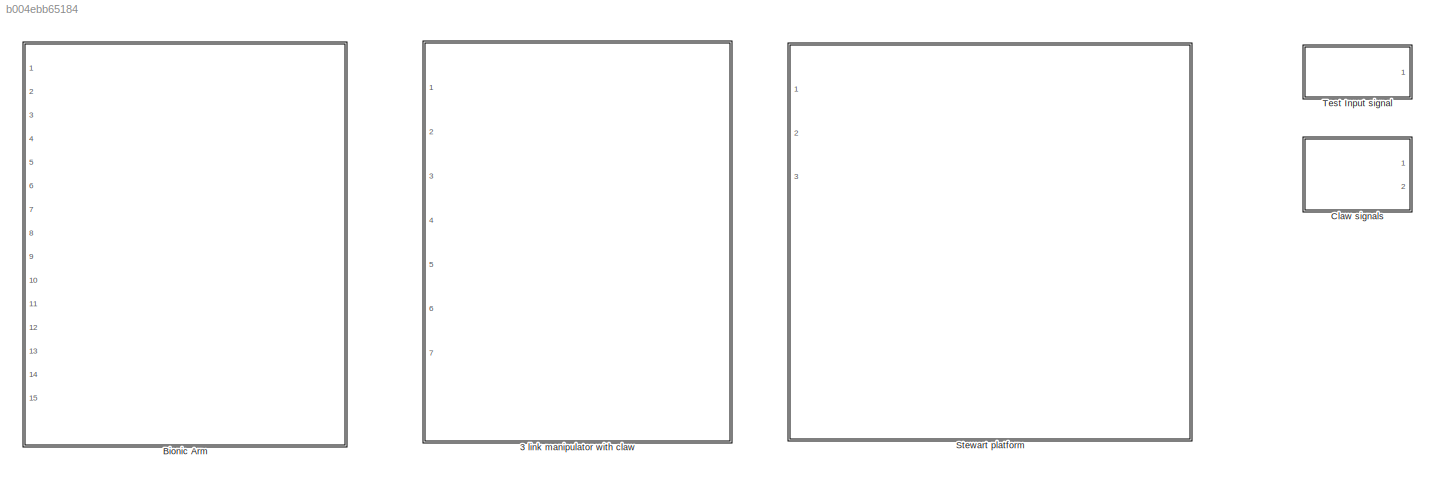
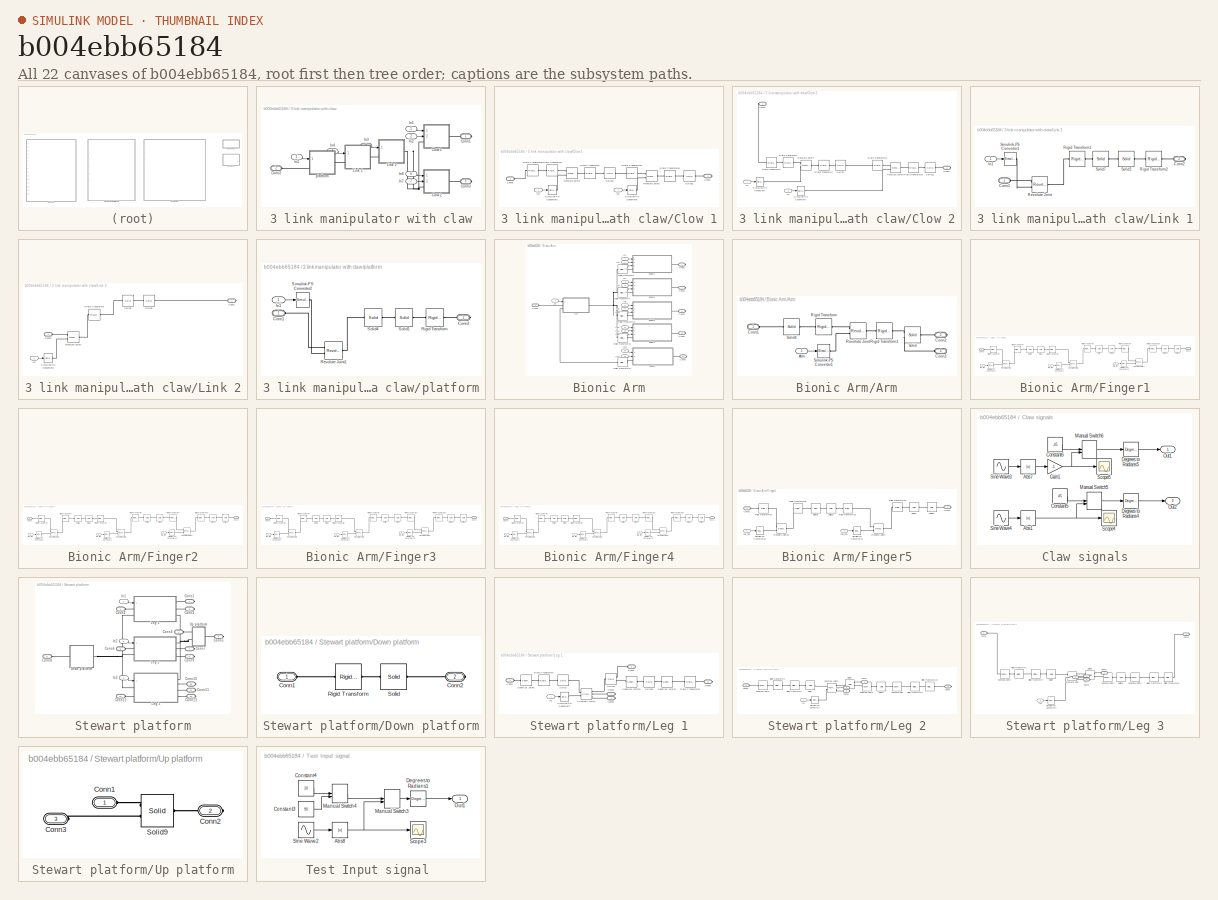
[diagram: thumbnail index - all 22 canvases of the model, root first then tree order]
MODEL slx_b004ebb65184
KIND library
CONFIG AbsTol = auto
CONFIG EnableMultiTasking = off
CONFIG FixedStep = auto
CONFIG MaxStep = auto
CONFIG MinStep = auto
CONFIG RelTol = 1e-3
CONFIG SampleTimeConstraint = Unconstrained
CONFIG Solver = VariableStepAuto
CONFIG SolverName = VariableStepAuto
CONFIG StartTime = 0.0
CONFIG StopTime = 10.0
BLOCK [SubSystem] 3 link manipulator with claw
  Ports = [7, 0, 0, 0, 0, 1, 2]
  RequestExecContextInheritance = off
BLOCK [SubSystem] 3 link manipulator with claw/Clow 1
  Ports = [2, 0, 0, 0, 0, 1, 1]
  RequestExecContextInheritance = off
BLOCK [PMIOPort] 3 link manipulator with claw/Clow 1/Conn1
  Side = Right
BLOCK [PMIOPort] 3 link manipulator with claw/Clow 1/Conn2
  Port = 2
  Side = Left
BLOCK [Inport] 3 link manipulator with claw/Clow 1/In1
  IconDisplay = Port number
BLOCK [Inport] 3 link manipulator with claw/Clow 1/In2
  IconDisplay = Port number
  Port = 2
BLOCK [Reference] 3 link manipulator with claw/Clow 1/Revolute Joint3  REF=sm_lib/Joints/Revolute Joint
  Ports = [0, 0, 0, 0, 0, 2, 1]
  SourceBlock = sm_lib/Joints/Revolute Joint
  SourceProductBaseCode = MS
  SourceProductName = Simscape Multibody
  SourceType = Revolute Joint
BLOCK [Reference] 3 link manipulator with claw/Clow 1/Revolute Joint5  REF=sm_lib/Joints/Revolute Joint
  Ports = [0, 0, 0, 0, 0, 2, 1]
  SourceBlock = sm_lib/Joints/Revolute Joint
  SourceProductBaseCode = MS
  SourceProductName = Simscape Multibody
  SourceType = Revolute Joint
BLOCK [Reference] 3 link manipulator with claw/Clow 1/Rigid Transform12  REF=sm_lib/Frames and
Transforms/Rigid
Transform
  Ports = [0, 0, 0, 0, 0, 1, 1]
  SourceBlock = sm_lib/Frames and\nTransforms/Rigid\nTransform
  SourceProductBaseCode = MS
  SourceProductName = Simscape Multibody
  SourceType = Rigid\nTransform
BLOCK [Reference] 3 link manipulator with claw/Clow 1/Rigid Transform13  REF=sm_lib/Frames and
Transforms/Rigid
Transform
  Ports = [0, 0, 0, 0, 0, 1, 1]
  SourceBlock = sm_lib/Frames and\nTransforms/Rigid\nTransform
  SourceProductBaseCode = MS
  SourceProductName = Simscape Multibody
  SourceType = Rigid\nTransform
BLOCK [Reference] 3 link manipulator with claw/Clow 1/Rigid Transform5  REF=sm_lib/Frames and
Transforms/Rigid
Transform
  Ports = [0, 0, 0, 0, 0, 1, 1]
  SourceBlock = sm_lib/Frames and\nTransforms/Rigid\nTransform
  SourceProductBaseCode = MS
  SourceProductName = Simscape Multibody
  SourceType = Rigid\nTransform
BLOCK [Reference] 3 link manipulator with claw/Clow 1/Rigid Transform6  REF=sm_lib/Frames and
Transforms/Rigid
Transform
  Ports = [0, 0, 0, 0, 0, 1, 1]
  SourceBlock = sm_lib/Frames and\nTransforms/Rigid\nTransform
  SourceProductBaseCode = MS
  SourceProductName = Simscape Multibody
  SourceType = Rigid\nTransform
BLOCK [Reference] 3 link manipulator with claw/Clow 1/Rigid Transform8  REF=sm_lib/Frames and
Transforms/Rigid
Transform
  Ports = [0, 0, 0, 0, 0, 1, 1]
  SourceBlock = sm_lib/Frames and\nTransforms/Rigid\nTransform
  SourceProductBaseCode = MS
  SourceProductName = Simscape Multibody
  SourceType = Rigid\nTransform
BLOCK [Reference] 3 link manipulator with claw/Clow 1/Simulink-PS Converter5  REF=nesl_utility/Simulink-PS
Converter
  Ports = [1, 0, 0, 0, 0, 0, 1]
  SourceBlock = nesl_utility/Simulink-PS\nConverter
  SourceProductBaseCode = SS
  SourceProductName = Simscape
  SourceType = Simulink-PS\nConverter
BLOCK [Reference] 3 link manipulator with claw/Clow 1/Simulink-PS Converter6  REF=nesl_utility/Simulink-PS
Converter
  Ports = [1, 0, 0, 0, 0, 0, 1]
  SourceBlock = nesl_utility/Simulink-PS\nConverter
  SourceProductBaseCode = SS
  SourceProductName = Simscape
  SourceType = Simulink-PS\nConverter
BLOCK [Reference] 3 link manipulator with claw/Clow 1/Solid10  REF=sm_lib/Body Elements/Solid
  Ports = [0, 0, 0, 0, 0, 1, 1]
  SourceBlock = sm_lib/Body Elements/Solid
  SourceProductBaseCode = MS
  SourceProductName = Simscape Multibody
  SourceType = Solid
BLOCK [Reference] 3 link manipulator with claw/Clow 1/Solid12  REF=sm_lib/Body Elements/Solid
  Ports = [0, 0, 0, 0, 0, 1, 1]
  SourceBlock = sm_lib/Body Elements/Solid
  SourceProductBaseCode = MS
  SourceProductName = Simscape Multibody
  SourceType = Solid
BLOCK [SubSystem] 3 link manipulator with claw/Clow 2
  Ports = [2, 0, 0, 0, 0, 1, 1]
  RequestExecContextInheritance = off
BLOCK [PMIOPort] 3 link manipulator with claw/Clow 2/Conn1
  Side = Left
BLOCK [PMIOPort] 3 link manipulator with claw/Clow 2/Conn2
  Port = 2
  Side = Right
BLOCK [Inport] 3 link manipulator with claw/Clow 2/In1
  IconDisplay = Port number
BLOCK [Inport] 3 link manipulator with claw/Clow 2/In2
  IconDisplay = Port number
  Port = 2
BLOCK [Reference] 3 link manipulator with claw/Clow 2/Revolute Joint4  REF=sm_lib/Joints/Revolute Joint
  Ports = [0, 0, 0, 0, 0, 2, 1]
  SourceBlock = sm_lib/Joints/Revolute Joint
  SourceProductBaseCode = MS
  SourceProductName = Simscape Multibody
  SourceType = Revolute Joint
BLOCK [Reference] 3 link manipulator with claw/Clow 2/Revolute Joint6  REF=sm_lib/Joints/Revolute Joint
  Ports = [0, 0, 0, 0, 0, 2, 1]
  SourceBlock = sm_lib/Joints/Revolute Joint
  SourceProductBaseCode = MS
  SourceProductName = Simscape Multibody
  SourceType = Revolute Joint
BLOCK [Reference] 3 link manipulator with claw/Clow 2/Rigid Transform10  REF=sm_lib/Frames and
Transforms/Rigid
Transform
  Ports = [0, 0, 0, 0, 0, 1, 1]
  SourceBlock = sm_lib/Frames and\nTransforms/Rigid\nTransform
  SourceProductBaseCode = MS
  SourceProductName = Simscape Multibody
  SourceType = Rigid\nTransform
BLOCK [Reference] 3 link manipulator with claw/Clow 2/Rigid Transform11  REF=sm_lib/Frames and
Transforms/Rigid
Transform
  Ports = [0, 0, 0, 0, 0, 1, 1]
  SourceBlock = sm_lib/Frames and\nTransforms/Rigid\nTransform
  SourceProductBaseCode = MS
  SourceProductName = Simscape Multibody
  SourceType = Rigid\nTransform
BLOCK [Reference] 3 link manipulator with claw/Clow 2/Rigid Transform4  REF=sm_lib/Frames and
Transforms/Rigid
Transform
  Ports = [0, 0, 0, 0, 0, 1, 1]
  SourceBlock = sm_lib/Frames and\nTransforms/Rigid\nTransform
  SourceProductBaseCode = MS
  SourceProductName = Simscape Multibody
  SourceType = Rigid\nTransform
BLOCK [Reference] 3 link manipulator with claw/Clow 2/Rigid Transform7  REF=sm_lib/Frames and
Transforms/Rigid
Transform
  Ports = [0, 0, 0, 0, 0, 1, 1]
  SourceBlock = sm_lib/Frames and\nTransforms/Rigid\nTransform
  SourceProductBaseCode = MS
  SourceProductName = Simscape Multibody
  SourceType = Rigid\nTransform
BLOCK [Reference] 3 link manipulator with claw/Clow 2/Rigid Transform9  REF=sm_lib/Frames and
Transforms/Rigid
Transform
  Ports = [0, 0, 0, 0, 0, 1, 1]
  SourceBlock = sm_lib/Frames and\nTransforms/Rigid\nTransform
  SourceProductBaseCode = MS
  SourceProductName = Simscape Multibody
  SourceType = Rigid\nTransform
BLOCK [Reference] 3 link manipulator with claw/Clow 2/Simulink-PS Converter4  REF=nesl_utility/Simulink-PS
Converter
  Ports = [1, 0, 0, 0, 0, 0, 1]
  SourceBlock = nesl_utility/Simulink-PS\nConverter
  SourceProductBaseCode = SS
  SourceProductName = Simscape
  SourceType = Simulink-PS\nConverter
BLOCK [Reference] 3 link manipulator with claw/Clow 2/Simulink-PS Converter7  REF=nesl_utility/Simulink-PS
Converter
  Ports = [1, 0, 0, 0, 0, 0, 1]
  SourceBlock = nesl_utility/Simulink-PS\nConverter
  SourceProductBaseCode = SS
  SourceProductName = Simscape
  SourceType = Simulink-PS\nConverter
BLOCK [Reference] 3 link manipulator with claw/Clow 2/Solid11  REF=sm_lib/Body Elements/Solid
  Ports = [0, 0, 0, 0, 0, 1, 1]
  SourceBlock = sm_lib/Body Elements/Solid
  SourceProductBaseCode = MS
  SourceProductName = Simscape Multibody
  SourceType = Solid
BLOCK [Reference] 3 link manipulator with claw/Clow 2/Solid9  REF=sm_lib/Body Elements/Solid
  Ports = [0, 0, 0, 0, 0, 1, 1]
  SourceBlock = sm_lib/Body Elements/Solid
  SourceProductBaseCode = MS
  SourceProductName = Simscape Multibody
  SourceType = Solid
BLOCK [PMIOPort] 3 link manipulator with claw/Conn1
  Side = Right
BLOCK [PMIOPort] 3 link manipulator with claw/Conn2
  Port = 2
  Side = Left
BLOCK [PMIOPort] 3 link manipulator with claw/Conn3
  Port = 3
  Side = Right
BLOCK [Inport] 3 link manipulator with claw/In1
  IconDisplay = Port number
BLOCK [Inport] 3 link manipulator with claw/In2
  IconDisplay = Port number
  Port = 2
BLOCK [Inport] 3 link manipulator with claw/In3
  IconDisplay = Port number
  Port = 3
BLOCK [Inport] 3 link manipulator with claw/In4
  IconDisplay = Port number
  Port = 4
BLOCK [Inport] 3 link manipulator with claw/In5
  IconDisplay = Port number
  Port = 5
BLOCK [Inport] 3 link manipulator with claw/In6
  IconDisplay = Port number
  Port = 6
BLOCK [Inport] 3 link manipulator with claw/In7
  IconDisplay = Port number
  Port = 7
BLOCK [SubSystem] 3 link manipulator with claw/Link 1
  Ports = [1, 0, 0, 0, 0, 1, 1]
  RequestExecContextInheritance = off
BLOCK [PMIOPort] 3 link manipulator with claw/Link 1/Conn1
  Side = Left
BLOCK [PMIOPort] 3 link manipulator with claw/Link 1/Conn2
  Port = 2
  Side = Right
BLOCK [Inport] 3 link manipulator with claw/Link 1/In1
  IconDisplay = Port number
BLOCK [Reference] 3 link manipulator with claw/Link 1/Revolute Joint  REF=sm_lib/Joints/Revolute Joint
  Ports = [0, 0, 0, 0, 0, 2, 1]
  SourceBlock = sm_lib/Joints/Revolute Joint
  SourceProductBaseCode = MS
  SourceProductName = Simscape Multibody
  SourceType = Revolute Joint
BLOCK [Reference] 3 link manipulator with claw/Link 1/Rigid Transform1  REF=sm_lib/Frames and
Transforms/Rigid
Transform
  Ports = [0, 0, 0, 0, 0, 1, 1]
  SourceBlock = sm_lib/Frames and\nTransforms/Rigid\nTransform
  SourceProductBaseCode = MS
  SourceProductName = Simscape Multibody
  SourceType = Rigid\nTransform
BLOCK [Reference] 3 link manipulator with claw/Link 1/Rigid Transform2  REF=sm_lib/Frames and
Transforms/Rigid
Transform
  Ports = [0, 0, 0, 0, 0, 1, 1]
  SourceBlock = sm_lib/Frames and\nTransforms/Rigid\nTransform
  SourceProductBaseCode = MS
  SourceProductName = Simscape Multibody
  SourceType = Rigid\nTransform
BLOCK [Reference] 3 link manipulator with claw/Link 1/Simulink-PS Converter1  REF=nesl_utility/Simulink-PS
Converter
  Ports = [1, 0, 0, 0, 0, 0, 1]
  SourceBlock = nesl_utility/Simulink-PS\nConverter
  SourceProductBaseCode = SS
  SourceProductName = Simscape
  SourceType = Simulink-PS\nConverter
BLOCK [Reference] 3 link manipulator with claw/Link 1/Solid3  REF=sm_lib/Body Elements/Solid
  Ports = [0, 0, 0, 0, 0, 1, 1]
  SourceBlock = sm_lib/Body Elements/Solid
  SourceProductBaseCode = MS
  SourceProductName = Simscape Multibody
  SourceType = Solid
BLOCK [Reference] 3 link manipulator with claw/Link 1/Solid7  REF=sm_lib/Body Elements/Solid
  Ports = [0, 0, 0, 0, 0, 1, 1]
  SourceBlock = sm_lib/Body Elements/Solid
  SourceProductBaseCode = MS
  SourceProductName = Simscape Multibody
  SourceType = Solid
BLOCK [SubSystem] 3 link manipulator with claw/Link 2
  Ports = [1, 0, 0, 0, 0, 1, 1]
  RequestExecContextInheritance = off
BLOCK [PMIOPort] 3 link manipulator with claw/Link 2/Conn1
  Side = Right
BLOCK [PMIOPort] 3 link manipulator with claw/Link 2/Conn2
  Port = 2
  Side = Left
BLOCK [Inport] 3 link manipulator with claw/Link 2/In1
  IconDisplay = Port number
BLOCK [Reference] 3 link manipulator with claw/Link 2/Revolute Joint2  REF=sm_lib/Joints/Revolute Joint
  Ports = [0, 0, 0, 0, 0, 2, 1]
  SourceBlock = sm_lib/Joints/Revolute Joint
  SourceProductBaseCode = MS
  SourceProductName = Simscape Multibody
  SourceType = Revolute Joint
BLOCK [Reference] 3 link manipulator with claw/Link 2/Rigid Transform3  REF=sm_lib/Frames and
Transforms/Rigid
Transform
  Ports = [0, 0, 0, 0, 0, 1, 1]
  SourceBlock = sm_lib/Frames and\nTransforms/Rigid\nTransform
  SourceProductBaseCode = MS
  SourceProductName = Simscape Multibody
  SourceType = Rigid\nTransform
BLOCK [Reference] 3 link manipulator with claw/Link 2/Simulink-PS Converter3  REF=nesl_utility/Simulink-PS
Converter
  Ports = [1, 0, 0, 0, 0, 0, 1]
  SourceBlock = nesl_utility/Simulink-PS\nConverter
  SourceProductBaseCode = SS
  SourceProductName = Simscape
  SourceType = Simulink-PS\nConverter
BLOCK [Reference] 3 link manipulator with claw/Link 2/Solid6  REF=sm_lib/Body Elements/Solid
  Ports = [0, 0, 0, 0, 0, 1, 1]
  SourceBlock = sm_lib/Body Elements/Solid
  SourceProductBaseCode = MS
  SourceProductName = Simscape Multibody
  SourceType = Solid
BLOCK [Reference] 3 link manipulator with claw/Link 2/Solid8  REF=sm_lib/Body Elements/Solid
  Ports = [0, 0, 0, 0, 0, 1, 1]
  SourceBlock = sm_lib/Body Elements/Solid
  SourceProductBaseCode = MS
  SourceProductName = Simscape Multibody
  SourceType = Solid
BLOCK [SubSystem] 3 link manipulator with claw/platform
  Ports = [1, 0, 0, 0, 0, 1, 1]
  RequestExecContextInheritance = off
BLOCK [PMIOPort] 3 link manipulator with claw/platform/Conn1
  Side = Left
BLOCK [PMIOPort] 3 link manipulator with claw/platform/Conn2
  Port = 2
  Side = Right
BLOCK [Inport] 3 link manipulator with claw/platform/In1
  IconDisplay = Port number
BLOCK [Reference] 3 link manipulator with claw/platform/Revolute Joint1  REF=sm_lib/Joints/Revolute Joint
  Ports = [0, 0, 0, 0, 0, 2, 1]
  SourceBlock = sm_lib/Joints/Revolute Joint
  SourceProductBaseCode = MS
  SourceProductName = Simscape Multibody
  SourceType = Revolute Joint
BLOCK [Reference] 3 link manipulator with claw/platform/Rigid Transform  REF=sm_lib/Frames and
Transforms/Rigid
Transform
  Ports = [0, 0, 0, 0, 0, 1, 1]
  SourceBlock = sm_lib/Frames and\nTransforms/Rigid\nTransform
  SourceProductBaseCode = MS
  SourceProductName = Simscape Multibody
  SourceType = Rigid\nTransform
BLOCK [Reference] 3 link manipulator with claw/platform/Simulink-PS Converter2  REF=nesl_utility/Simulink-PS
Converter
  Ports = [1, 0, 0, 0, 0, 0, 1]
  SourceBlock = nesl_utility/Simulink-PS\nConverter
  SourceProductBaseCode = SS
  SourceProductName = Simscape
  SourceType = Simulink-PS\nConverter
BLOCK [Reference] 3 link manipulator with claw/platform/Solid1  REF=sm_lib/Body Elements/Solid
  Ports = [0, 0, 0, 0, 0, 1, 1]
  SourceBlock = sm_lib/Body Elements/Solid
  SourceProductBaseCode = MS
  SourceProductName = Simscape Multibody
  SourceType = Solid
BLOCK [Reference] 3 link manipulator with claw/platform/Solid4  REF=sm_lib/Body Elements/Solid
  Ports = [0, 0, 0, 0, 0, 1, 1]
  SourceBlock = sm_lib/Body Elements/Solid
  SourceProductBaseCode = MS
  SourceProductName = Simscape Multibody
  SourceType = Solid
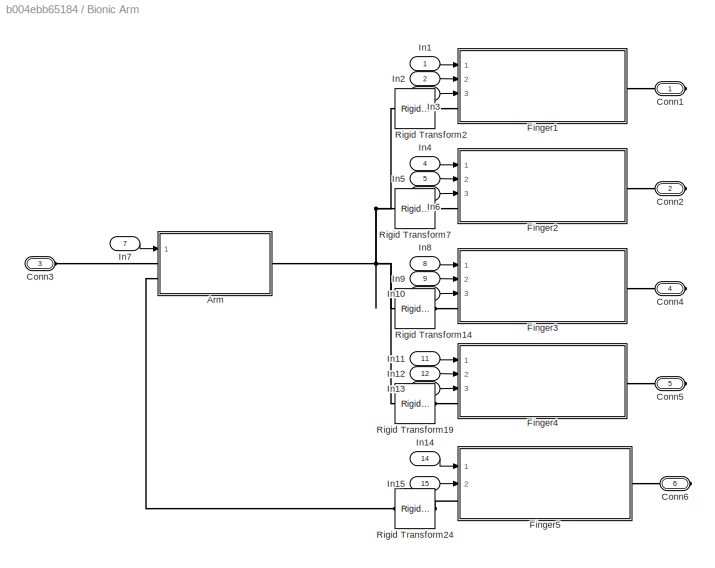
BLOCK [SubSystem] Bionic Arm
  Ports = [15, 0, 0, 0, 0, 1, 5]
  RequestExecContextInheritance = off
BLOCK [SubSystem] Bionic Arm/Arm
  Ports = [1, 0, 0, 0, 0, 2, 1]
  RequestExecContextInheritance = off
BLOCK [Inport] Bionic Arm/Arm/Arm
  IconDisplay = Port number
BLOCK [PMIOPort] Bionic Arm/Arm/Conn1
  Side = Left
BLOCK [PMIOPort] Bionic Arm/Arm/Conn2
  Port = 2
  Side = Right
BLOCK [PMIOPort] Bionic Arm/Arm/Conn3
  Port = 3
  Side = Left
BLOCK [Reference] Bionic Arm/Arm/Revolute Joint  REF=sm_lib/Joints/Revolute Joint
  Ports = [0, 0, 0, 0, 0, 2, 1]
  SourceBlock = sm_lib/Joints/Revolute Joint
  SourceProductBaseCode = MS
  SourceProductName = Simscape Multibody
  SourceType = Revolute Joint
BLOCK [Reference] Bionic Arm/Arm/Rigid Transform  REF=sm_lib/Frames and
Transforms/Rigid
Transform
  Ports = [0, 0, 0, 0, 0, 1, 1]
  SourceBlock = sm_lib/Frames and\nTransforms/Rigid\nTransform
  SourceProductBaseCode = MS
  SourceProductName = Simscape Multibody
  SourceType = Rigid\nTransform
BLOCK [Reference] Bionic Arm/Arm/Rigid Transform1  REF=sm_lib/Frames and
Transforms/Rigid
Transform
  Ports = [0, 0, 0, 0, 0, 1, 1]
  SourceBlock = sm_lib/Frames and\nTransforms/Rigid\nTransform
  SourceProductBaseCode = MS
  SourceProductName = Simscape Multibody
  SourceType = Rigid\nTransform
BLOCK [Reference] Bionic Arm/Arm/Simulink-PS Converter1  REF=nesl_utility/Simulink-PS
Converter
  Ports = [1, 0, 0, 0, 0, 0, 1]
  SourceBlock = nesl_utility/Simulink-PS\nConverter
  SourceProductBaseCode = SS
  SourceProductName = Simscape
  SourceType = Simulink-PS\nConverter
BLOCK [Reference] Bionic Arm/Arm/Solid  REF=sm_lib/Body Elements/Solid
  Ports = [0, 0, 0, 0, 0, 2, 1]
  SourceBlock = sm_lib/Body Elements/Solid
  SourceProductBaseCode = MS
  SourceProductName = Simscape Multibody
  SourceType = Solid
BLOCK [Reference] Bionic Arm/Arm/Solid4  REF=sm_lib/Body Elements/Solid
  Ports = [0, 0, 0, 0, 0, 1, 1]
  SourceBlock = sm_lib/Body Elements/Solid
  SourceProductBaseCode = MS
  SourceProductName = Simscape Multibody
  SourceType = Solid
BLOCK [PMIOPort] Bionic Arm/Conn1
  Side = Right
BLOCK [PMIOPort] Bionic Arm/Conn2
  Port = 2
  Side = Right
BLOCK [PMIOPort] Bionic Arm/Conn3
  Port = 3
  Side = Left
BLOCK [PMIOPort] Bionic Arm/Conn4
  Port = 4
  Side = Right
BLOCK [PMIOPort] Bionic Arm/Conn5
  Port = 5
  Side = Right
BLOCK [PMIOPort] Bionic Arm/Conn6
  Port = 6
  Side = Right
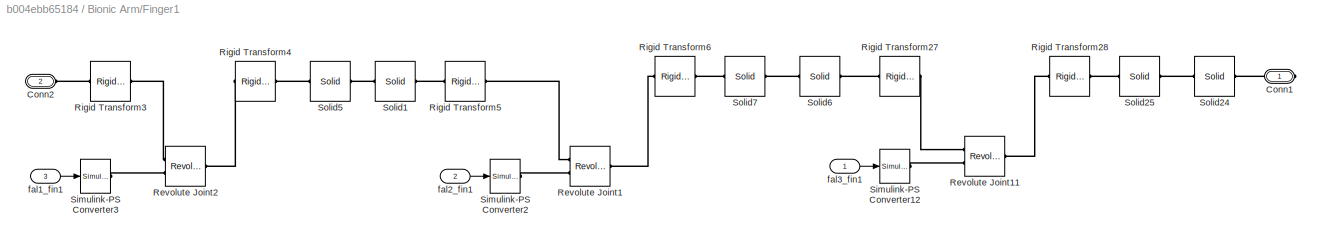
BLOCK [SubSystem] Bionic Arm/Finger1
  Ports = [3, 0, 0, 0, 0, 1, 1]
  RequestExecContextInheritance = off
BLOCK [PMIOPort] Bionic Arm/Finger1/Conn1
  Side = Right
BLOCK [PMIOPort] Bionic Arm/Finger1/Conn2
  Port = 2
  Side = Left
BLOCK [Reference] Bionic Arm/Finger1/Revolute Joint1  REF=sm_lib/Joints/Revolute Joint
  Ports = [0, 0, 0, 0, 0, 2, 1]
  SourceBlock = sm_lib/Joints/Revolute Joint
  SourceProductBaseCode = MS
  SourceProductName = Simscape Multibody
  SourceType = Revolute Joint
BLOCK [Reference] Bionic Arm/Finger1/Revolute Joint11  REF=sm_lib/Joints/Revolute Joint
  Ports = [0, 0, 0, 0, 0, 2, 1]
  SourceBlock = sm_lib/Joints/Revolute Joint
  SourceProductBaseCode = MS
  SourceProductName = Simscape Multibody
  SourceType = Revolute Joint
BLOCK [Reference] Bionic Arm/Finger1/Revolute Joint2  REF=sm_lib/Joints/Revolute Joint
  Ports = [0, 0, 0, 0, 0, 2, 1]
  SourceBlock = sm_lib/Joints/Revolute Joint
  SourceProductBaseCode = MS
  SourceProductName = Simscape Multibody
  SourceType = Revolute Joint
BLOCK [Reference] Bionic Arm/Finger1/Rigid Transform27  REF=sm_lib/Frames and
Transforms/Rigid
Transform
  Ports = [0, 0, 0, 0, 0, 1, 1]
  SourceBlock = sm_lib/Frames and\nTransforms/Rigid\nTransform
  SourceProductBaseCode = MS
  SourceProductName = Simscape Multibody
  SourceType = Rigid\nTransform
BLOCK [Reference] Bionic Arm/Finger1/Rigid Transform28  REF=sm_lib/Frames and
Transforms/Rigid
Transform
  Ports = [0, 0, 0, 0, 0, 1, 1]
  SourceBlock = sm_lib/Frames and\nTransforms/Rigid\nTransform
  SourceProductBaseCode = MS
  SourceProductName = Simscape Multibody
  SourceType = Rigid\nTransform
BLOCK [Reference] Bionic Arm/Finger1/Rigid Transform3  REF=sm_lib/Frames and
Transforms/Rigid
Transform
  Ports = [0, 0, 0, 0, 0, 1, 1]
  SourceBlock = sm_lib/Frames and\nTransforms/Rigid\nTransform
  SourceProductBaseCode = MS
  SourceProductName = Simscape Multibody
  SourceType = Rigid\nTransform
BLOCK [Reference] Bionic Arm/Finger1/Rigid Transform4  REF=sm_lib/Frames and
Transforms/Rigid
Transform
  Ports = [0, 0, 0, 0, 0, 1, 1]
  SourceBlock = sm_lib/Frames and\nTransforms/Rigid\nTransform
  SourceProductBaseCode = MS
  SourceProductName = Simscape Multibody
  SourceType = Rigid\nTransform
BLOCK [Reference] Bionic Arm/Finger1/Rigid Transform5  REF=sm_lib/Frames and
Transforms/Rigid
Transform
  Ports = [0, 0, 0, 0, 0, 1, 1]
  SourceBlock = sm_lib/Frames and\nTransforms/Rigid\nTransform
  SourceProductBaseCode = MS
  SourceProductName = Simscape Multibody
  SourceType = Rigid\nTransform
BLOCK [Reference] Bionic Arm/Finger1/Rigid Transform6  REF=sm_lib/Frames and
Transforms/Rigid
Transform
  Ports = [0, 0, 0, 0, 0, 1, 1]
  SourceBlock = sm_lib/Frames and\nTransforms/Rigid\nTransform
  SourceProductBaseCode = MS
  SourceProductName = Simscape Multibody
  SourceType = Rigid\nTransform
BLOCK [Reference] Bionic Arm/Finger1/Simulink-PS Converter12  REF=nesl_utility/Simulink-PS
Converter
  Ports = [1, 0, 0, 0, 0, 0, 1]
  SourceBlock = nesl_utility/Simulink-PS\nConverter
  SourceProductBaseCode = SS
  SourceProductName = Simscape
  SourceType = Simulink-PS\nConverter
BLOCK [Reference] Bionic Arm/Finger1/Simulink-PS Converter2  REF=nesl_utility/Simulink-PS
Converter
  Ports = [1, 0, 0, 0, 0, 0, 1]
  SourceBlock = nesl_utility/Simulink-PS\nConverter
  SourceProductBaseCode = SS
  SourceProductName = Simscape
  SourceType = Simulink-PS\nConverter
BLOCK [Reference] Bionic Arm/Finger1/Simulink-PS Converter3  REF=nesl_utility/Simulink-PS
Converter
  Ports = [1, 0, 0, 0, 0, 0, 1]
  SourceBlock = nesl_utility/Simulink-PS\nConverter
  SourceProductBaseCode = SS
  SourceProductName = Simscape
  SourceType = Simulink-PS\nConverter
BLOCK [Reference] Bionic Arm/Finger1/Solid1  REF=sm_lib/Body Elements/Solid
  Ports = [0, 0, 0, 0, 0, 1, 1]
  SourceBlock = sm_lib/Body Elements/Solid
  SourceProductBaseCode = MS
  SourceProductName = Simscape Multibody
  SourceType = Solid
BLOCK [Reference] Bionic Arm/Finger1/Solid24  REF=sm_lib/Body Elements/Solid
  Ports = [0, 0, 0, 0, 0, 1, 1]
  SourceBlock = sm_lib/Body Elements/Solid
  SourceProductBaseCode = MS
  SourceProductName = Simscape Multibody
  SourceType = Solid
BLOCK [Reference] Bionic Arm/Finger1/Solid25  REF=sm_lib/Body Elements/Solid
  Ports = [0, 0, 0, 0, 0, 1, 1]
  SourceBlock = sm_lib/Body Elements/Solid
  SourceProductBaseCode = MS
  SourceProductName = Simscape Multibody
  SourceType = Solid
BLOCK [Reference] Bionic Arm/Finger1/Solid5  REF=sm_lib/Body Elements/Solid
  Ports = [0, 0, 0, 0, 0, 1, 1]
  SourceBlock = sm_lib/Body Elements/Solid
  SourceProductBaseCode = MS
  SourceProductName = Simscape Multibody
  SourceType = Solid
BLOCK [Reference] Bionic Arm/Finger1/Solid6  REF=sm_lib/Body Elements/Solid
  Ports = [0, 0, 0, 0, 0, 1, 1]
  SourceBlock = sm_lib/Body Elements/Solid
  SourceProductBaseCode = MS
  SourceProductName = Simscape Multibody
  SourceType = Solid
BLOCK [Reference] Bionic Arm/Finger1/Solid7  REF=sm_lib/Body Elements/Solid
  Ports = [0, 0, 0, 0, 0, 1, 1]
  SourceBlock = sm_lib/Body Elements/Solid
  SourceProductBaseCode = MS
  SourceProductName = Simscape Multibody
  SourceType = Solid
BLOCK [Inport] Bionic Arm/Finger1/fal1_fin1
  IconDisplay = Port number
  Port = 3
BLOCK [Inport] Bionic Arm/Finger1/fal2_fin1
  IconDisplay = Port number
  Port = 2
BLOCK [Inport] Bionic Arm/Finger1/fal3_fin1
  IconDisplay = Port number
BLOCK [SubSystem] Bionic Arm/Finger2
  Ports = [3, 0, 0, 0, 0, 1, 1]
  RequestExecContextInheritance = off
BLOCK [PMIOPort] Bionic Arm/Finger2/Conn1
  Side = Right
BLOCK [PMIOPort] Bionic Arm/Finger2/Conn2
  Port = 2
  Side = Left
BLOCK [Reference] Bionic Arm/Finger2/Revolute Joint1  REF=sm_lib/Joints/Revolute Joint
  Ports = [0, 0, 0, 0, 0, 2, 1]
  SourceBlock = sm_lib/Joints/Revolute Joint
  SourceProductBaseCode = MS
  SourceProductName = Simscape Multibody
  SourceType = Revolute Joint
BLOCK [Reference] Bionic Arm/Finger2/Revolute Joint11  REF=sm_lib/Joints/Revolute Joint
  Ports = [0, 0, 0, 0, 0, 2, 1]
  SourceBlock = sm_lib/Joints/Revolute Joint
  SourceProductBaseCode = MS
  SourceProductName = Simscape Multibody
  SourceType = Revolute Joint
BLOCK [Reference] Bionic Arm/Finger2/Revolute Joint2  REF=sm_lib/Joints/Revolute Joint
  Ports = [0, 0, 0, 0, 0, 2, 1]
  SourceBlock = sm_lib/Joints/Revolute Joint
  SourceProductBaseCode = MS
  SourceProductName = Simscape Multibody
  SourceType = Revolute Joint
BLOCK [Reference] Bionic Arm/Finger2/Rigid Transform27  REF=sm_lib/Frames and
Transforms/Rigid
Transform
  Ports = [0, 0, 0, 0, 0, 1, 1]
  SourceBlock = sm_lib/Frames and\nTransforms/Rigid\nTransform
  SourceProductBaseCode = MS
  SourceProductName = Simscape Multibody
  SourceType = Rigid\nTransform
BLOCK [Reference] Bionic Arm/Finger2/Rigid Transform28  REF=sm_lib/Frames and
Transforms/Rigid
Transform
  Ports = [0, 0, 0, 0, 0, 1, 1]
  SourceBlock = sm_lib/Frames and\nTransforms/Rigid\nTransform
  SourceProductBaseCode = MS
  SourceProductName = Simscape Multibody
  SourceType = Rigid\nTransform
BLOCK [Reference] Bionic Arm/Finger2/Rigid Transform3  REF=sm_lib/Frames and
Transforms/Rigid
Transform
  Ports = [0, 0, 0, 0, 0, 1, 1]
  SourceBlock = sm_lib/Frames and\nTransforms/Rigid\nTransform
  SourceProductBaseCode = MS
  SourceProductName = Simscape Multibody
  SourceType = Rigid\nTransform
BLOCK [Reference] Bionic Arm/Finger2/Rigid Transform4  REF=sm_lib/Frames and
Transforms/Rigid
Transform
  Ports = [0, 0, 0, 0, 0, 1, 1]
  SourceBlock = sm_lib/Frames and\nTransforms/Rigid\nTransform
  SourceProductBaseCode = MS
  SourceProductName = Simscape Multibody
  SourceType = Rigid\nTransform
BLOCK [Reference] Bionic Arm/Finger2/Rigid Transform5  REF=sm_lib/Frames and
Transforms/Rigid
Transform
  Ports = [0, 0, 0, 0, 0, 1, 1]
  SourceBlock = sm_lib/Frames and\nTransforms/Rigid\nTransform
  SourceProductBaseCode = MS
  SourceProductName = Simscape Multibody
  SourceType = Rigid\nTransform
BLOCK [Reference] Bionic Arm/Finger2/Rigid Transform6  REF=sm_lib/Frames and
Transforms/Rigid
Transform
  Ports = [0, 0, 0, 0, 0, 1, 1]
  SourceBlock = sm_lib/Frames and\nTransforms/Rigid\nTransform
  SourceProductBaseCode = MS
  SourceProductName = Simscape Multibody
  SourceType = Rigid\nTransform
BLOCK [Reference] Bionic Arm/Finger2/Simulink-PS Converter12  REF=nesl_utility/Simulink-PS
Converter
  Ports = [1, 0, 0, 0, 0, 0, 1]
  SourceBlock = nesl_utility/Simulink-PS\nConverter
  SourceProductBaseCode = SS
  SourceProductName = Simscape
  SourceType = Simulink-PS\nConverter
BLOCK [Reference] Bionic Arm/Finger2/Simulink-PS Converter2  REF=nesl_utility/Simulink-PS
Converter
  Ports = [1, 0, 0, 0, 0, 0, 1]
  SourceBlock = nesl_utility/Simulink-PS\nConverter
  SourceProductBaseCode = SS
  SourceProductName = Simscape
  SourceType = Simulink-PS\nConverter
BLOCK [Reference] Bionic Arm/Finger2/Simulink-PS Converter3  REF=nesl_utility/Simulink-PS
Converter
  Ports = [1, 0, 0, 0, 0, 0, 1]
  SourceBlock = nesl_utility/Simulink-PS\nConverter
  SourceProductBaseCode = SS
  SourceProductName = Simscape
  SourceType = Simulink-PS\nConverter
BLOCK [Reference] Bionic Arm/Finger2/Solid1  REF=sm_lib/Body Elements/Solid
  Ports = [0, 0, 0, 0, 0, 1, 1]
  SourceBlock = sm_lib/Body Elements/Solid
  SourceProductBaseCode = MS
  SourceProductName = Simscape Multibody
  SourceType = Solid
BLOCK [Reference] Bionic Arm/Finger2/Solid24  REF=sm_lib/Body Elements/Solid
  Ports = [0, 0, 0, 0, 0, 1, 1]
  SourceBlock = sm_lib/Body Elements/Solid
  SourceProductBaseCode = MS
  SourceProductName = Simscape Multibody
  SourceType = Solid
BLOCK [Reference] Bionic Arm/Finger2/Solid25  REF=sm_lib/Body Elements/Solid
  Ports = [0, 0, 0, 0, 0, 1, 1]
  SourceBlock = sm_lib/Body Elements/Solid
  SourceProductBaseCode = MS
  SourceProductName = Simscape Multibody
  SourceType = Solid
BLOCK [Reference] Bionic Arm/Finger2/Solid5  REF=sm_lib/Body Elements/Solid
  Ports = [0, 0, 0, 0, 0, 1, 1]
  SourceBlock = sm_lib/Body Elements/Solid
  SourceProductBaseCode = MS
  SourceProductName = Simscape Multibody
  SourceType = Solid
BLOCK [Reference] Bionic Arm/Finger2/Solid6  REF=sm_lib/Body Elements/Solid
  Ports = [0, 0, 0, 0, 0, 1, 1]
  SourceBlock = sm_lib/Body Elements/Solid
  SourceProductBaseCode = MS
  SourceProductName = Simscape Multibody
  SourceType = Solid
BLOCK [Reference] Bionic Arm/Finger2/Solid7  REF=sm_lib/Body Elements/Solid
  Ports = [0, 0, 0, 0, 0, 1, 1]
  SourceBlock = sm_lib/Body Elements/Solid
  SourceProductBaseCode = MS
  SourceProductName = Simscape Multibody
  SourceType = Solid
BLOCK [Inport] Bionic Arm/Finger2/fal1_fin2
  IconDisplay = Port number
  Port = 3
BLOCK [Inport] Bionic Arm/Finger2/fal2_fin2
  IconDisplay = Port number
  Port = 2
BLOCK [Inport] Bionic Arm/Finger2/fal3_fin2
  IconDisplay = Port number
BLOCK [SubSystem] Bionic Arm/Finger3
  Ports = [3, 0, 0, 0, 0, 1, 1]
  RequestExecContextInheritance = off
BLOCK [PMIOPort] Bionic Arm/Finger3/Conn1
  Side = Right
BLOCK [PMIOPort] Bionic Arm/Finger3/Conn2
  Port = 2
  Side = Left
BLOCK [Reference] Bionic Arm/Finger3/Revolute Joint1  REF=sm_lib/Joints/Revolute Joint
  Ports = [0, 0, 0, 0, 0, 2, 1]
  SourceBlock = sm_lib/Joints/Revolute Joint
  SourceProductBaseCode = MS
  SourceProductName = Simscape Multibody
  SourceType = Revolute Joint
BLOCK [Reference] Bionic Arm/Finger3/Revolute Joint11  REF=sm_lib/Joints/Revolute Joint
  Ports = [0, 0, 0, 0, 0, 2, 1]
  SourceBlock = sm_lib/Joints/Revolute Joint
  SourceProductBaseCode = MS
  SourceProductName = Simscape Multibody
  SourceType = Revolute Joint
BLOCK [Reference] Bionic Arm/Finger3/Revolute Joint2  REF=sm_lib/Joints/Revolute Joint
  Ports = [0, 0, 0, 0, 0, 2, 1]
  SourceBlock = sm_lib/Joints/Revolute Joint
  SourceProductBaseCode = MS
  SourceProductName = Simscape Multibody
  SourceType = Revolute Joint
BLOCK [Reference] Bionic Arm/Finger3/Rigid Transform27  REF=sm_lib/Frames and
Transforms/Rigid
Transform
  Ports = [0, 0, 0, 0, 0, 1, 1]
  SourceBlock = sm_lib/Frames and\nTransforms/Rigid\nTransform
  SourceProductBaseCode = MS
  SourceProductName = Simscape Multibody
  SourceType = Rigid\nTransform
BLOCK [Reference] Bionic Arm/Finger3/Rigid Transform28  REF=sm_lib/Frames and
Transforms/Rigid
Transform
  Ports = [0, 0, 0, 0, 0, 1, 1]
  SourceBlock = sm_lib/Frames and\nTransforms/Rigid\nTransform
  SourceProductBaseCode = MS
  SourceProductName = Simscape Multibody
  SourceType = Rigid\nTransform
BLOCK [Reference] Bionic Arm/Finger3/Rigid Transform3  REF=sm_lib/Frames and
Transforms/Rigid
Transform
  Ports = [0, 0, 0, 0, 0, 1, 1]
  SourceBlock = sm_lib/Frames and\nTransforms/Rigid\nTransform
  SourceProductBaseCode = MS
  SourceProductName = Simscape Multibody
  SourceType = Rigid\nTransform
BLOCK [Reference] Bionic Arm/Finger3/Rigid Transform4  REF=sm_lib/Frames and
Transforms/Rigid
Transform
  Ports = [0, 0, 0, 0, 0, 1, 1]
  SourceBlock = sm_lib/Frames and\nTransforms/Rigid\nTransform
  SourceProductBaseCode = MS
  SourceProductName = Simscape Multibody
  SourceType = Rigid\nTransform
BLOCK [Reference] Bionic Arm/Finger3/Rigid Transform5  REF=sm_lib/Frames and
Transforms/Rigid
Transform
  Ports = [0, 0, 0, 0, 0, 1, 1]
  SourceBlock = sm_lib/Frames and\nTransforms/Rigid\nTransform
  SourceProductBaseCode = MS
  SourceProductName = Simscape Multibody
  SourceType = Rigid\nTransform
BLOCK [Reference] Bionic Arm/Finger3/Rigid Transform6  REF=sm_lib/Frames and
Transforms/Rigid
Transform
  Ports = [0, 0, 0, 0, 0, 1, 1]
  SourceBlock = sm_lib/Frames and\nTransforms/Rigid\nTransform
  SourceProductBaseCode = MS
  SourceProductName = Simscape Multibody
  SourceType = Rigid\nTransform
BLOCK [Reference] Bionic Arm/Finger3/Simulink-PS Converter12  REF=nesl_utility/Simulink-PS
Converter
  Ports = [1, 0, 0, 0, 0, 0, 1]
  SourceBlock = nesl_utility/Simulink-PS\nConverter
  SourceProductBaseCode = SS
  SourceProductName = Simscape
  SourceType = Simulink-PS\nConverter
BLOCK [Reference] Bionic Arm/Finger3/Simulink-PS Converter2  REF=nesl_utility/Simulink-PS
Converter
  Ports = [1, 0, 0, 0, 0, 0, 1]
  SourceBlock = nesl_utility/Simulink-PS\nConverter
  SourceProductBaseCode = SS
  SourceProductName = Simscape
  SourceType = Simulink-PS\nConverter
BLOCK [Reference] Bionic Arm/Finger3/Simulink-PS Converter3  REF=nesl_utility/Simulink-PS
Converter
  Ports = [1, 0, 0, 0, 0, 0, 1]
  SourceBlock = nesl_utility/Simulink-PS\nConverter
  SourceProductBaseCode = SS
  SourceProductName = Simscape
  SourceType = Simulink-PS\nConverter
BLOCK [Reference] Bionic Arm/Finger3/Solid1  REF=sm_lib/Body Elements/Solid
  Ports = [0, 0, 0, 0, 0, 1, 1]
  SourceBlock = sm_lib/Body Elements/Solid
  SourceProductBaseCode = MS
  SourceProductName = Simscape Multibody
  SourceType = Solid
BLOCK [Reference] Bionic Arm/Finger3/Solid24  REF=sm_lib/Body Elements/Solid
  Ports = [0, 0, 0, 0, 0, 1, 1]
  SourceBlock = sm_lib/Body Elements/Solid
  SourceProductBaseCode = MS
  SourceProductName = Simscape Multibody
  SourceType = Solid
BLOCK [Reference] Bionic Arm/Finger3/Solid25  REF=sm_lib/Body Elements/Solid
  Ports = [0, 0, 0, 0, 0, 1, 1]
  SourceBlock = sm_lib/Body Elements/Solid
  SourceProductBaseCode = MS
  SourceProductName = Simscape Multibody
  SourceType = Solid
BLOCK [Reference] Bionic Arm/Finger3/Solid5  REF=sm_lib/Body Elements/Solid
  Ports = [0, 0, 0, 0, 0, 1, 1]
  SourceBlock = sm_lib/Body Elements/Solid
  SourceProductBaseCode = MS
  SourceProductName = Simscape Multibody
  SourceType = Solid
BLOCK [Reference] Bionic Arm/Finger3/Solid6  REF=sm_lib/Body Elements/Solid
  Ports = [0, 0, 0, 0, 0, 1, 1]
  SourceBlock = sm_lib/Body Elements/Solid
  SourceProductBaseCode = MS
  SourceProductName = Simscape Multibody
  SourceType = Solid
BLOCK [Reference] Bionic Arm/Finger3/Solid7  REF=sm_lib/Body Elements/Solid
  Ports = [0, 0, 0, 0, 0, 1, 1]
  SourceBlock = sm_lib/Body Elements/Solid
  SourceProductBaseCode = MS
  SourceProductName = Simscape Multibody
  SourceType = Solid
BLOCK [Inport] Bionic Arm/Finger3/fal1_fin3
  IconDisplay = Port number
  Port = 3
BLOCK [Inport] Bionic Arm/Finger3/fal2_fin3
  IconDisplay = Port number
  Port = 2
BLOCK [Inport] Bionic Arm/Finger3/fal3_fin3 
  IconDisplay = Port number
BLOCK [SubSystem] Bionic Arm/Finger4
  Ports = [3, 0, 0, 0, 0, 1, 1]
  RequestExecContextInheritance = off
BLOCK [PMIOPort] Bionic Arm/Finger4/Conn1
  Side = Right
BLOCK [PMIOPort] Bionic Arm/Finger4/Conn2
  Port = 2
  Side = Left
BLOCK [Reference] Bionic Arm/Finger4/Revolute Joint1  REF=sm_lib/Joints/Revolute Joint
  Ports = [0, 0, 0, 0, 0, 2, 1]
  SourceBlock = sm_lib/Joints/Revolute Joint
  SourceProductBaseCode = MS
  SourceProductName = Simscape Multibody
  SourceType = Revolute Joint
BLOCK [Reference] Bionic Arm/Finger4/Revolute Joint11  REF=sm_lib/Joints/Revolute Joint
  Ports = [0, 0, 0, 0, 0, 2, 1]
  SourceBlock = sm_lib/Joints/Revolute Joint
  SourceProductBaseCode = MS
  SourceProductName = Simscape Multibody
  SourceType = Revolute Joint
BLOCK [Reference] Bionic Arm/Finger4/Revolute Joint2  REF=sm_lib/Joints/Revolute Joint
  Ports = [0, 0, 0, 0, 0, 2, 1]
  SourceBlock = sm_lib/Joints/Revolute Joint
  SourceProductBaseCode = MS
  SourceProductName = Simscape Multibody
  SourceType = Revolute Joint
BLOCK [Reference] Bionic Arm/Finger4/Rigid Transform27  REF=sm_lib/Frames and
Transforms/Rigid
Transform
  Ports = [0, 0, 0, 0, 0, 1, 1]
  SourceBlock = sm_lib/Frames and\nTransforms/Rigid\nTransform
  SourceProductBaseCode = MS
  SourceProductName = Simscape Multibody
  SourceType = Rigid\nTransform
BLOCK [Reference] Bionic Arm/Finger4/Rigid Transform28  REF=sm_lib/Frames and
Transforms/Rigid
Transform
  Ports = [0, 0, 0, 0, 0, 1, 1]
  SourceBlock = sm_lib/Frames and\nTransforms/Rigid\nTransform
  SourceProductBaseCode = MS
  SourceProductName = Simscape Multibody
  SourceType = Rigid\nTransform
BLOCK [Reference] Bionic Arm/Finger4/Rigid Transform3  REF=sm_lib/Frames and
Transforms/Rigid
Transform
  Ports = [0, 0, 0, 0, 0, 1, 1]
  SourceBlock = sm_lib/Frames and\nTransforms/Rigid\nTransform
  SourceProductBaseCode = MS
  SourceProductName = Simscape Multibody
  SourceType = Rigid\nTransform
BLOCK [Reference] Bionic Arm/Finger4/Rigid Transform4  REF=sm_lib/Frames and
Transforms/Rigid
Transform
  Ports = [0, 0, 0, 0, 0, 1, 1]
  SourceBlock = sm_lib/Frames and\nTransforms/Rigid\nTransform
  SourceProductBaseCode = MS
  SourceProductName = Simscape Multibody
  SourceType = Rigid\nTransform
BLOCK [Reference] Bionic Arm/Finger4/Rigid Transform5  REF=sm_lib/Frames and
Transforms/Rigid
Transform
  Ports = [0, 0, 0, 0, 0, 1, 1]
  SourceBlock = sm_lib/Frames and\nTransforms/Rigid\nTransform
  SourceProductBaseCode = MS
  SourceProductName = Simscape Multibody
  SourceType = Rigid\nTransform
BLOCK [Reference] Bionic Arm/Finger4/Rigid Transform6  REF=sm_lib/Frames and
Transforms/Rigid
Transform
  Ports = [0, 0, 0, 0, 0, 1, 1]
  SourceBlock = sm_lib/Frames and\nTransforms/Rigid\nTransform
  SourceProductBaseCode = MS
  SourceProductName = Simscape Multibody
  SourceType = Rigid\nTransform
BLOCK [Reference] Bionic Arm/Finger4/Simulink-PS Converter12  REF=nesl_utility/Simulink-PS
Converter
  Ports = [1, 0, 0, 0, 0, 0, 1]
  SourceBlock = nesl_utility/Simulink-PS\nConverter
  SourceProductBaseCode = SS
  SourceProductName = Simscape
  SourceType = Simulink-PS\nConverter
BLOCK [Reference] Bionic Arm/Finger4/Simulink-PS Converter2  REF=nesl_utility/Simulink-PS
Converter
  Ports = [1, 0, 0, 0, 0, 0, 1]
  SourceBlock = nesl_utility/Simulink-PS\nConverter
  SourceProductBaseCode = SS
  SourceProductName = Simscape
  SourceType = Simulink-PS\nConverter
BLOCK [Reference] Bionic Arm/Finger4/Simulink-PS Converter3  REF=nesl_utility/Simulink-PS
Converter
  Ports = [1, 0, 0, 0, 0, 0, 1]
  SourceBlock = nesl_utility/Simulink-PS\nConverter
  SourceProductBaseCode = SS
  SourceProductName = Simscape
  SourceType = Simulink-PS\nConverter
BLOCK [Reference] Bionic Arm/Finger4/Solid1  REF=sm_lib/Body Elements/Solid
  Ports = [0, 0, 0, 0, 0, 1, 1]
  SourceBlock = sm_lib/Body Elements/Solid
  SourceProductBaseCode = MS
  SourceProductName = Simscape Multibody
  SourceType = Solid
BLOCK [Reference] Bionic Arm/Finger4/Solid24  REF=sm_lib/Body Elements/Solid
  Ports = [0, 0, 0, 0, 0, 1, 1]
  SourceBlock = sm_lib/Body Elements/Solid
  SourceProductBaseCode = MS
  SourceProductName = Simscape Multibody
  SourceType = Solid
BLOCK [Reference] Bionic Arm/Finger4/Solid25  REF=sm_lib/Body Elements/Solid
  Ports = [0, 0, 0, 0, 0, 1, 1]
  SourceBlock = sm_lib/Body Elements/Solid
  SourceProductBaseCode = MS
  SourceProductName = Simscape Multibody
  SourceType = Solid
BLOCK [Reference] Bionic Arm/Finger4/Solid5  REF=sm_lib/Body Elements/Solid
  Ports = [0, 0, 0, 0, 0, 1, 1]
  SourceBlock = sm_lib/Body Elements/Solid
  SourceProductBaseCode = MS
  SourceProductName = Simscape Multibody
  SourceType = Solid
BLOCK [Reference] Bionic Arm/Finger4/Solid6  REF=sm_lib/Body Elements/Solid
  Ports = [0, 0, 0, 0, 0, 1, 1]
  SourceBlock = sm_lib/Body Elements/Solid
  SourceProductBaseCode = MS
  SourceProductName = Simscape Multibody
  SourceType = Solid
BLOCK [Reference] Bionic Arm/Finger4/Solid7  REF=sm_lib/Body Elements/Solid
  Ports = [0, 0, 0, 0, 0, 1, 1]
  SourceBlock = sm_lib/Body Elements/Solid
  SourceProductBaseCode = MS
  SourceProductName = Simscape Multibody
  SourceType = Solid
BLOCK [Inport] Bionic Arm/Finger4/fal1_fin4
  IconDisplay = Port number
  Port = 3
BLOCK [Inport] Bionic Arm/Finger4/fal2_fin4
  IconDisplay = Port number
  Port = 2
BLOCK [Inport] Bionic Arm/Finger4/fal3_fin4
  IconDisplay = Port number
BLOCK [SubSystem] Bionic Arm/Finger5
  Ports = [2, 0, 0, 0, 0, 1, 1]
  RequestExecContextInheritance = off
BLOCK [PMIOPort] Bionic Arm/Finger5/Conn1
  Side = Right
BLOCK [PMIOPort] Bionic Arm/Finger5/Conn2
  Port = 2
  Side = Left
BLOCK [Reference] Bionic Arm/Finger5/Revolute Joint10  REF=sm_lib/Joints/Revolute Joint
  Ports = [0, 0, 0, 0, 0, 2, 1]
  SourceBlock = sm_lib/Joints/Revolute Joint
  SourceProductBaseCode = MS
  SourceProductName = Simscape Multibody
  SourceType = Revolute Joint
BLOCK [Reference] Bionic Arm/Finger5/Revolute Joint9  REF=sm_lib/Joints/Revolute Joint
  Ports = [0, 0, 0, 0, 0, 2, 1]
  SourceBlock = sm_lib/Joints/Revolute Joint
  SourceProductBaseCode = MS
  SourceProductName = Simscape Multibody
  SourceType = Revolute Joint
BLOCK [Reference] Bionic Arm/Finger5/Rigid Transform22  REF=sm_lib/Frames and
Transforms/Rigid
Transform
  Ports = [0, 0, 0, 0, 0, 1, 1]
  SourceBlock = sm_lib/Frames and\nTransforms/Rigid\nTransform
  SourceProductBaseCode = MS
  SourceProductName = Simscape Multibody
  SourceType = Rigid\nTransform
BLOCK [Reference] Bionic Arm/Finger5/Rigid Transform23  REF=sm_lib/Frames and
Transforms/Rigid
Transform
  Ports = [0, 0, 0, 0, 0, 1, 1]
  SourceBlock = sm_lib/Frames and\nTransforms/Rigid\nTransform
  SourceProductBaseCode = MS
  SourceProductName = Simscape Multibody
  SourceType = Rigid\nTransform
BLOCK [Reference] Bionic Arm/Finger5/Rigid Transform25  REF=sm_lib/Frames and
Transforms/Rigid
Transform
  Ports = [0, 0, 0, 0, 0, 1, 1]
  SourceBlock = sm_lib/Frames and\nTransforms/Rigid\nTransform
  SourceProductBaseCode = MS
  SourceProductName = Simscape Multibody
  SourceType = Rigid\nTransform
BLOCK [Reference] Bionic Arm/Finger5/Rigid Transform26  REF=sm_lib/Frames and
Transforms/Rigid
Transform
  Ports = [0, 0, 0, 0, 0, 1, 1]
  SourceBlock = sm_lib/Frames and\nTransforms/Rigid\nTransform
  SourceProductBaseCode = MS
  SourceProductName = Simscape Multibody
  SourceType = Rigid\nTransform
BLOCK [Reference] Bionic Arm/Finger5/Simulink-PS Converter10  REF=nesl_utility/Simulink-PS
Converter
  Ports = [1, 0, 0, 0, 0, 0, 1]
  SourceBlock = nesl_utility/Simulink-PS\nConverter
  SourceProductBaseCode = SS
  SourceProductName = Simscape
  SourceType = Simulink-PS\nConverter
BLOCK [Reference] Bionic Arm/Finger5/Simulink-PS Converter11  REF=nesl_utility/Simulink-PS
Converter
  Ports = [1, 0, 0, 0, 0, 0, 1]
  SourceBlock = nesl_utility/Simulink-PS\nConverter
  SourceProductBaseCode = SS
  SourceProductName = Simscape
  SourceType = Simulink-PS\nConverter
BLOCK [Reference] Bionic Arm/Finger5/Solid20  REF=sm_lib/Body Elements/Solid
  Ports = [0, 0, 0, 0, 0, 1, 1]
  SourceBlock = sm_lib/Body Elements/Solid
  SourceProductBaseCode = MS
  SourceProductName = Simscape Multibody
  SourceType = Solid
BLOCK [Reference] Bionic Arm/Finger5/Solid21  REF=sm_lib/Body Elements/Solid
  Ports = [0, 0, 0, 0, 0, 1, 1]
  SourceBlock = sm_lib/Body Elements/Solid
  SourceProductBaseCode = MS
  SourceProductName = Simscape Multibody
  SourceType = Solid
BLOCK [Reference] Bionic Arm/Finger5/Solid22  REF=sm_lib/Body Elements/Solid
  Ports = [0, 0, 0, 0, 0, 1, 1]
  SourceBlock = sm_lib/Body Elements/Solid
  SourceProductBaseCode = MS
  SourceProductName = Simscape Multibody
  SourceType = Solid
BLOCK [Reference] Bionic Arm/Finger5/Solid23  REF=sm_lib/Body Elements/Solid
  Ports = [0, 0, 0, 0, 0, 1, 1]
  SourceBlock = sm_lib/Body Elements/Solid
  SourceProductBaseCode = MS
  SourceProductName = Simscape Multibody
  SourceType = Solid
BLOCK [Inport] Bionic Arm/Finger5/fal1_fin5
  IconDisplay = Port number
BLOCK [Inport] Bionic Arm/Finger5/fal2_fin5
  IconDisplay = Port number
  Port = 2
BLOCK [Inport] Bionic Arm/In1
  IconDisplay = Port number
BLOCK [Inport] Bionic Arm/In10
  IconDisplay = Port number
  Port = 10
BLOCK [Inport] Bionic Arm/In11
  IconDisplay = Port number
  Port = 11
BLOCK [Inport] Bionic Arm/In12
  IconDisplay = Port number
  Port = 12
BLOCK [Inport] Bionic Arm/In13
  IconDisplay = Port number
  Port = 13
BLOCK [Inport] Bionic Arm/In14
  IconDisplay = Port number
  Port = 14
BLOCK [Inport] Bionic Arm/In15
  IconDisplay = Port number
  Port = 15
BLOCK [Inport] Bionic Arm/In2
  IconDisplay = Port number
  Port = 2
BLOCK [Inport] Bionic Arm/In3
  IconDisplay = Port number
  Port = 3
BLOCK [Inport] Bionic Arm/In4
  IconDisplay = Port number
  Port = 4
BLOCK [Inport] Bionic Arm/In5
  IconDisplay = Port number
  Port = 5
BLOCK [Inport] Bionic Arm/In6
  IconDisplay = Port number
  Port = 6
BLOCK [Inport] Bionic Arm/In7
  IconDisplay = Port number
  Port = 7
BLOCK [Inport] Bionic Arm/In8
  IconDisplay = Port number
  Port = 8
BLOCK [Inport] Bionic Arm/In9
  IconDisplay = Port number
  Port = 9
BLOCK [Reference] Bionic Arm/Rigid Transform14  REF=sm_lib/Frames and
Transforms/Rigid
Transform
  Ports = [0, 0, 0, 0, 0, 1, 1]
  SourceBlock = sm_lib/Frames and\nTransforms/Rigid\nTransform
  SourceProductBaseCode = MS
  SourceProductName = Simscape Multibody
  SourceType = Rigid\nTransform
BLOCK [Reference] Bionic Arm/Rigid Transform19  REF=sm_lib/Frames and
Transforms/Rigid
Transform
  Ports = [0, 0, 0, 0, 0, 1, 1]
  SourceBlock = sm_lib/Frames and\nTransforms/Rigid\nTransform
  SourceProductBaseCode = MS
  SourceProductName = Simscape Multibody
  SourceType = Rigid\nTransform
BLOCK [Reference] Bionic Arm/Rigid Transform2  REF=sm_lib/Frames and
Transforms/Rigid
Transform
  Ports = [0, 0, 0, 0, 0, 1, 1]
  SourceBlock = sm_lib/Frames and\nTransforms/Rigid\nTransform
  SourceProductBaseCode = MS
  SourceProductName = Simscape Multibody
  SourceType = Rigid\nTransform
BLOCK [Reference] Bionic Arm/Rigid Transform24  REF=sm_lib/Frames and
Transforms/Rigid
Transform
  Ports = [0, 0, 0, 0, 0, 1, 1]
  SourceBlock = sm_lib/Frames and\nTransforms/Rigid\nTransform
  SourceProductBaseCode = MS
  SourceProductName = Simscape Multibody
  SourceType = Rigid\nTransform
BLOCK [Reference] Bionic Arm/Rigid Transform7  REF=sm_lib/Frames and
Transforms/Rigid
Transform
  Ports = [0, 0, 0, 0, 0, 1, 1]
  SourceBlock = sm_lib/Frames and\nTransforms/Rigid\nTransform
  SourceProductBaseCode = MS
  SourceProductName = Simscape Multibody
  SourceType = Rigid\nTransform
BLOCK [SubSystem] Claw signals
  Ports = [0, 2]
  RequestExecContextInheritance = off
BLOCK [Abs] Claw signals/Abs1
  SaturateOnIntegerOverflow = off
BLOCK [Abs] Claw signals/Abs7
  SaturateOnIntegerOverflow = off
BLOCK [Constant] Claw signals/Constant5
  Value = 45
BLOCK [Constant] Claw signals/Constant6
  Value = -45
BLOCK [Reference] Claw signals/Degrees to Radians4  REF=simulink_extras/Transformations/Degrees to
Radians
  Ports = [1, 1]
  SourceBlock = simulink_extras/Transformations/Degrees to\nRadians
  SourceProductBaseCode = SL
  SourceProductName = Simulink
  SourceType = DegreesToRadians
BLOCK [Reference] Claw signals/Degrees to Radians5  REF=simulink_extras/Transformations/Degrees to
Radians
  Ports = [1, 1]
  SourceBlock = simulink_extras/Transformations/Degrees to\nRadians
  SourceProductBaseCode = SL
  SourceProductName = Simulink
  SourceType = DegreesToRadians
BLOCK [Gain] Claw signals/Gain1
  Gain = -1
  OutDataTypeStr = Inherit: Inherit via internal rule
  ParamDataTypeStr = Inherit: Inherit via internal rule
  SaturateOnIntegerOverflow = off
BLOCK [ManualSwitch] Claw signals/Manual Switch5
BLOCK [ManualSwitch] Claw signals/Manual Switch6
BLOCK [Outport] Claw signals/Out1
  IconDisplay = Port number
BLOCK [Outport] Claw signals/Out2
  IconDisplay = Port number
  Port = 2
BLOCK [Scope] Claw signals/Scope4
  Floating = off
  NumInputPorts = 1
  Ports = [1]
  ScopeSpecificationString = Simulink.scopes.TimeScopeBlockCfg('CurrentConfiguration', extmgr.ConfigurationSet(extmgr.Configuration('Core','General UI',true),extmgr.Configuration('Core','Source UI',true),extmgr.Configuration('Sources','WiredSimulink',true,'DataLoggingLimitDataPoints',true,'DataLoggingSaveFormat','Array','DataLoggingDecimation','1','DataLoggingDecimateData',true,'DataLoggingVariableName','ScopeData4'),extmgr.C...<+1684ch>
BLOCK [Scope] Claw signals/Scope5
  Floating = off
  NumInputPorts = 1
  Ports = [1]
  ScopeSpecificationString = Simulink.scopes.TimeScopeBlockCfg('CurrentConfiguration', extmgr.ConfigurationSet(extmgr.Configuration('Core','General UI',true),extmgr.Configuration('Core','Source UI',true),extmgr.Configuration('Sources','WiredSimulink',true,'DataLoggingLimitDataPoints',true,'DataLoggingSaveFormat','Array','DataLoggingDecimation','1','DataLoggingDecimateData',true,'DataLoggingVariableName','ScopeData5'),extmgr.C...<+1684ch>
BLOCK [Sin] Claw signals/Sine Wave3
  Amplitude = 50
  Ports = [0, 1]
  SampleTime = 0
BLOCK [Sin] Claw signals/Sine Wave4
  Amplitude = 50
  Ports = [0, 1]
  SampleTime = 0
BLOCK [SubSystem] Stewart platform
  Ports = [3, 0, 0, 0, 0, 5, 8]
  RequestExecContextInheritance = off
BLOCK [PMIOPort] Stewart platform/Conn1
  Side = Right
BLOCK [PMIOPort] Stewart platform/Conn10
  Port = 10
  Side = Right
BLOCK [PMIOPort] Stewart platform/Conn11
  Port = 11
  Side = Right
BLOCK [PMIOPort] Stewart platform/Conn12
  Port = 12
  Side = Left
BLOCK [PMIOPort] Stewart platform/Conn13
  Port = 13
  Side = Right
BLOCK [PMIOPort] Stewart platform/Conn2
  Port = 2
  Side = Left
BLOCK [PMIOPort] Stewart platform/Conn3
  Port = 3
  Side = Right
BLOCK [PMIOPort] Stewart platform/Conn4
  Port = 4
  Side = Left
BLOCK [PMIOPort] Stewart platform/Conn5
  Port = 5
  Side = Right
BLOCK [PMIOPort] Stewart platform/Conn6
  Port = 6
  Side = Left
BLOCK [PMIOPort] Stewart platform/Conn7
  Port = 7
  Side = Right
BLOCK [PMIOPort] Stewart platform/Conn8
  Port = 8
  Side = Left
BLOCK [PMIOPort] Stewart platform/Conn9
  Port = 9
  Side = Right
BLOCK [SubSystem] Stewart platform/Down platform
  Ports = [0, 0, 0, 0, 0, 1, 1]
  RequestExecContextInheritance = off
BLOCK [PMIOPort] Stewart platform/Down platform/Conn1
  Side = Left
BLOCK [PMIOPort] Stewart platform/Down platform/Conn2
  Port = 2
  Side = Right
BLOCK [Reference] Stewart platform/Down platform/Rigid Transform  REF=sm_lib/Frames and
Transforms/Rigid
Transform
  Ports = [0, 0, 0, 0, 0, 1, 1]
  SourceBlock = sm_lib/Frames and\nTransforms/Rigid\nTransform
  SourceProductBaseCode = MS
  SourceProductName = Simscape Multibody
  SourceType = Rigid\nTransform
BLOCK [Reference] Stewart platform/Down platform/Solid  REF=sm_lib/Body Elements/Solid
  Ports = [0, 0, 0, 0, 0, 1, 1]
  SourceBlock = sm_lib/Body Elements/Solid
  SourceProductBaseCode = MS
  SourceProductName = Simscape Multibody
  SourceType = Solid
BLOCK [Inport] Stewart platform/In1
  IconDisplay = Port number
BLOCK [Inport] Stewart platform/In2
  IconDisplay = Port number
  Port = 2
BLOCK [Inport] Stewart platform/In3
  IconDisplay = Port number
  Port = 3
BLOCK [SubSystem] Stewart platform/Leg 1
  Ports = [1, 0, 0, 0, 0, 2, 3]
  RequestExecContextInheritance = off
BLOCK [PMIOPort] Stewart platform/Leg 1/Conn1
  Side = Left
BLOCK [PMIOPort] Stewart platform/Leg 1/Conn2
  Port = 2
  Side = Right
BLOCK [PMIOPort] Stewart platform/Leg 1/Conn3
  Port = 3
  Side = Right
BLOCK [PMIOPort] Stewart platform/Leg 1/Conn4
  Port = 4
  Side = Left
BLOCK [PMIOPort] Stewart platform/Leg 1/Conn5
  Port = 5
  Side = Right
BLOCK [Inport] Stewart platform/Leg 1/In1
  IconDisplay = Port number
BLOCK [Reference] Stewart platform/Leg 1/Prismatic Joint1  REF=sm_lib/Joints/Prismatic
Joint
  Ports = [0, 0, 0, 0, 0, 2, 3]
  SourceBlock = sm_lib/Joints/Prismatic\nJoint
  SourceProductBaseCode = MS
  SourceProductName = Simscape Multibody
  SourceType = Prismatic\nJoint
BLOCK [Reference] Stewart platform/Leg 1/Rigid Transform11  REF=sm_lib/Frames and
Transforms/Rigid
Transform
  Ports = [0, 0, 0, 0, 0, 1, 1]
  SourceBlock = sm_lib/Frames and\nTransforms/Rigid\nTransform
  SourceProductBaseCode = MS
  SourceProductName = Simscape Multibody
  SourceType = Rigid\nTransform
BLOCK [Reference] Stewart platform/Leg 1/Rigid Transform3  REF=sm_lib/Frames and
Transforms/Rigid
Transform
  Ports = [0, 0, 0, 0, 0, 1, 1]
  SourceBlock = sm_lib/Frames and\nTransforms/Rigid\nTransform
  SourceProductBaseCode = MS
  SourceProductName = Simscape Multibody
  SourceType = Rigid\nTransform
BLOCK [Reference] Stewart platform/Leg 1/Simulink-PS Converter3  REF=nesl_utility/Simulink-PS
Converter
  Ports = [1, 0, 0, 0, 0, 0, 1]
  SourceBlock = nesl_utility/Simulink-PS\nConverter
  SourceProductBaseCode = SS
  SourceProductName = Simscape
  SourceType = Simulink-PS\nConverter
BLOCK [Reference] Stewart platform/Leg 1/Solid12  REF=sm_lib/Body Elements/Solid
  Ports = [0, 0, 0, 0, 0, 1, 1]
  SourceBlock = sm_lib/Body Elements/Solid
  SourceProductBaseCode = MS
  SourceProductName = Simscape Multibody
  SourceType = Solid
BLOCK [Reference] Stewart platform/Leg 1/Solid2  REF=sm_lib/Body Elements/Solid
  Ports = [0, 0, 0, 0, 0, 1, 1]
  SourceBlock = sm_lib/Body Elements/Solid
  SourceProductBaseCode = MS
  SourceProductName = Simscape Multibody
  SourceType = Solid
BLOCK [Reference] Stewart platform/Leg 1/Solid3  REF=sm_lib/Body Elements/Solid
  Ports = [0, 0, 0, 0, 0, 2, 1]
  SourceBlock = sm_lib/Body Elements/Solid
  SourceProductBaseCode = MS
  SourceProductName = Simscape Multibody
  SourceType = Solid
BLOCK [Reference] Stewart platform/Leg 1/Spherical Joint10  REF=sm_lib/Joints/Spherical
Joint
  Ports = [0, 0, 0, 0, 0, 1, 1]
  SourceBlock = sm_lib/Joints/Spherical\nJoint
  SourceProductBaseCode = MS
  SourceProductName = Simscape Multibody
  SourceType = Spherical\nJoint
BLOCK [Reference] Stewart platform/Leg 1/Spherical Joint11  REF=sm_lib/Joints/Spherical
Joint
  Ports = [0, 0, 0, 0, 0, 1, 1]
  SourceBlock = sm_lib/Joints/Spherical\nJoint
  SourceProductBaseCode = MS
  SourceProductName = Simscape Multibody
  SourceType = Spherical\nJoint
BLOCK [Reference] Stewart platform/Leg 1/Spherical Joint6  REF=sm_lib/Joints/Spherical
Joint
  Ports = [0, 0, 0, 0, 0, 1, 1]
  SourceBlock = sm_lib/Joints/Spherical\nJoint
  SourceProductBaseCode = MS
  SourceProductName = Simscape Multibody
  SourceType = Spherical\nJoint
BLOCK [SubSystem] Stewart platform/Leg 2
  Ports = [1, 0, 0, 0, 0, 2, 3]
  RequestExecContextInheritance = off
BLOCK [PMIOPort] Stewart platform/Leg 2/Conn1
  Side = Left
BLOCK [PMIOPort] Stewart platform/Leg 2/Conn2
  Port = 2
  Side = Left
BLOCK [PMIOPort] Stewart platform/Leg 2/Conn3
  Port = 3
  Side = Right
BLOCK [PMIOPort] Stewart platform/Leg 2/Conn4
  Port = 4
  Side = Right
BLOCK [PMIOPort] Stewart platform/Leg 2/Conn5
  Port = 5
  Side = Right
BLOCK [Inport] Stewart platform/Leg 2/In1
  IconDisplay = Port number
BLOCK [Reference] Stewart platform/Leg 2/Prismatic Joint2  REF=sm_lib/Joints/Prismatic
Joint
  Ports = [0, 0, 0, 0, 0, 2, 3]
  SourceBlock = sm_lib/Joints/Prismatic\nJoint
  SourceProductBaseCode = MS
  SourceProductName = Simscape Multibody
  SourceType = Prismatic\nJoint
BLOCK [Reference] Stewart platform/Leg 2/Rigid Transform10  REF=sm_lib/Frames and
Transforms/Rigid
Transform
  Ports = [0, 0, 0, 0, 0, 1, 1]
  SourceBlock = sm_lib/Frames and\nTransforms/Rigid\nTransform
  SourceProductBaseCode = MS
  SourceProductName = Simscape Multibody
  SourceType = Rigid\nTransform
BLOCK [Reference] Stewart platform/Leg 2/Rigid Transform4  REF=sm_lib/Frames and
Transforms/Rigid
Transform
  Ports = [0, 0, 0, 0, 0, 1, 1]
  SourceBlock = sm_lib/Frames and\nTransforms/Rigid\nTransform
  SourceProductBaseCode = MS
  SourceProductName = Simscape Multibody
  SourceType = Rigid\nTransform
BLOCK [Reference] Stewart platform/Leg 2/Rigid Transform5  REF=sm_lib/Frames and
Transforms/Rigid
Transform
  Ports = [0, 0, 0, 0, 0, 1, 1]
  SourceBlock = sm_lib/Frames and\nTransforms/Rigid\nTransform
  SourceProductBaseCode = MS
  SourceProductName = Simscape Multibody
  SourceType = Rigid\nTransform
BLOCK [Reference] Stewart platform/Leg 2/Rigid Transform9  REF=sm_lib/Frames and
Transforms/Rigid
Transform
  Ports = [0, 0, 0, 0, 0, 1, 1]
  SourceBlock = sm_lib/Frames and\nTransforms/Rigid\nTransform
  SourceProductBaseCode = MS
  SourceProductName = Simscape Multibody
  SourceType = Rigid\nTransform
BLOCK [Reference] Stewart platform/Leg 2/Simulink-PS Converter1  REF=nesl_utility/Simulink-PS
Converter
  Ports = [1, 0, 0, 0, 0, 0, 1]
  SourceBlock = nesl_utility/Simulink-PS\nConverter
  SourceProductBaseCode = SS
  SourceProductName = Simscape
  SourceType = Simulink-PS\nConverter
BLOCK [Reference] Stewart platform/Leg 2/Solid11  REF=sm_lib/Body Elements/Solid
  Ports = [0, 0, 0, 0, 0, 1, 1]
  SourceBlock = sm_lib/Body Elements/Solid
  SourceProductBaseCode = MS
  SourceProductName = Simscape Multibody
  SourceType = Solid
BLOCK [Reference] Stewart platform/Leg 2/Solid7  REF=sm_lib/Body Elements/Solid
  Ports = [0, 0, 0, 0, 0, 1, 1]
  SourceBlock = sm_lib/Body Elements/Solid
  SourceProductBaseCode = MS
  SourceProductName = Simscape Multibody
  SourceType = Solid
BLOCK [Reference] Stewart platform/Leg 2/Solid8  REF=sm_lib/Body Elements/Solid
  Ports = [0, 0, 0, 0, 0, 2, 1]
  SourceBlock = sm_lib/Body Elements/Solid
  SourceProductBaseCode = MS
  SourceProductName = Simscape Multibody
  SourceType = Solid
BLOCK [Reference] Stewart platform/Leg 2/Spherical Joint  REF=sm_lib/Joints/Spherical
Joint
  Ports = [0, 0, 0, 0, 0, 1, 1]
  SourceBlock = sm_lib/Joints/Spherical\nJoint
  SourceProductBaseCode = MS
  SourceProductName = Simscape Multibody
  SourceType = Spherical\nJoint
BLOCK [Reference] Stewart platform/Leg 2/Spherical Joint3  REF=sm_lib/Joints/Spherical
Joint
  Ports = [0, 0, 0, 0, 0, 1, 1]
  SourceBlock = sm_lib/Joints/Spherical\nJoint
  SourceProductBaseCode = MS
  SourceProductName = Simscape Multibody
  SourceType = Spherical\nJoint
BLOCK [Reference] Stewart platform/Leg 2/Spherical Joint9  REF=sm_lib/Joints/Spherical
Joint
  Ports = [0, 0, 0, 0, 0, 1, 1]
  SourceBlock = sm_lib/Joints/Spherical\nJoint
  SourceProductBaseCode = MS
  SourceProductName = Simscape Multibody
  SourceType = Spherical\nJoint
BLOCK [SubSystem] Stewart platform/Leg 3
  Ports = [1, 0, 0, 0, 0, 2, 4]
  RequestExecContextInheritance = off
BLOCK [PMIOPort] Stewart platform/Leg 3/Conn1
  Side = Left
BLOCK [PMIOPort] Stewart platform/Leg 3/Conn2
  Port = 2
  Side = Right
BLOCK [PMIOPort] Stewart platform/Leg 3/Conn3
  Port = 3
  Side = Left
BLOCK [PMIOPort] Stewart platform/Leg 3/Conn4
  Port = 4
  Side = Right
BLOCK [PMIOPort] Stewart platform/Leg 3/Conn5
  Port = 5
  Side = Right
BLOCK [PMIOPort] Stewart platform/Leg 3/Conn6
  Port = 6
  Side = Right
BLOCK [Inport] Stewart platform/Leg 3/In1
  IconDisplay = Port number
BLOCK [Reference] Stewart platform/Leg 3/Prismatic Joint  REF=sm_lib/Joints/Prismatic
Joint
  Ports = [0, 0, 0, 0, 0, 2, 3]
  SourceBlock = sm_lib/Joints/Prismatic\nJoint
  SourceProductBaseCode = MS
  SourceProductName = Simscape Multibody
  SourceType = Prismatic\nJoint
BLOCK [Reference] Stewart platform/Leg 3/Rigid Transform2  REF=sm_lib/Frames and
Transforms/Rigid
Transform
  Ports = [0, 0, 0, 0, 0, 1, 1]
  SourceBlock = sm_lib/Frames and\nTransforms/Rigid\nTransform
  SourceProductBaseCode = MS
  SourceProductName = Simscape Multibody
  SourceType = Rigid\nTransform
BLOCK [Reference] Stewart platform/Leg 3/Rigid Transform6  REF=sm_lib/Frames and
Transforms/Rigid
Transform
  Ports = [0, 0, 0, 0, 0, 1, 1]
  SourceBlock = sm_lib/Frames and\nTransforms/Rigid\nTransform
  SourceProductBaseCode = MS
  SourceProductName = Simscape Multibody
  SourceType = Rigid\nTransform
BLOCK [Reference] Stewart platform/Leg 3/Rigid Transform7  REF=sm_lib/Frames and
Transforms/Rigid
Transform
  Ports = [0, 0, 0, 0, 0, 1, 1]
  SourceBlock = sm_lib/Frames and\nTransforms/Rigid\nTransform
  SourceProductBaseCode = MS
  SourceProductName = Simscape Multibody
  SourceType = Rigid\nTransform
BLOCK [Reference] Stewart platform/Leg 3/Rigid Transform8  REF=sm_lib/Frames and
Transforms/Rigid
Transform
  Ports = [0, 0, 0, 0, 0, 1, 1]
  SourceBlock = sm_lib/Frames and\nTransforms/Rigid\nTransform
  SourceProductBaseCode = MS
  SourceProductName = Simscape Multibody
  SourceType = Rigid\nTransform
BLOCK [Reference] Stewart platform/Leg 3/Simulink-PS Converter2  REF=nesl_utility/Simulink-PS
Converter
  Ports = [1, 0, 0, 0, 0, 0, 1]
  SourceBlock = nesl_utility/Simulink-PS\nConverter
  SourceProductBaseCode = SS
  SourceProductName = Simscape
  SourceType = Simulink-PS\nConverter
BLOCK [Reference] Stewart platform/Leg 3/Solid10  REF=sm_lib/Body Elements/Solid
  Ports = [0, 0, 0, 0, 0, 1, 1]
  SourceBlock = sm_lib/Body Elements/Solid
  SourceProductBaseCode = MS
  SourceProductName = Simscape Multibody
  SourceType = Solid
BLOCK [Reference] Stewart platform/Leg 3/Solid4  REF=sm_lib/Body Elements/Solid
  Ports = [0, 0, 0, 0, 0, 1, 1]
  SourceBlock = sm_lib/Body Elements/Solid
  SourceProductBaseCode = MS
  SourceProductName = Simscape Multibody
  SourceType = Solid
BLOCK [Reference] Stewart platform/Leg 3/Solid5  REF=sm_lib/Body Elements/Solid
  Ports = [0, 0, 0, 0, 0, 2, 2]
  SourceBlock = sm_lib/Body Elements/Solid
  SourceProductBaseCode = MS
  SourceProductName = Simscape Multibody
  SourceType = Solid
BLOCK [Reference] Stewart platform/Leg 3/Spherical Joint4  REF=sm_lib/Joints/Spherical
Joint
  Ports = [0, 0, 0, 0, 0, 1, 1]
  SourceBlock = sm_lib/Joints/Spherical\nJoint
  SourceProductBaseCode = MS
  SourceProductName = Simscape Multibody
  SourceType = Spherical\nJoint
BLOCK [Reference] Stewart platform/Leg 3/Spherical Joint7  REF=sm_lib/Joints/Spherical
Joint
  Ports = [0, 0, 0, 0, 0, 1, 1]
  SourceBlock = sm_lib/Joints/Spherical\nJoint
  SourceProductBaseCode = MS
  SourceProductName = Simscape Multibody
  SourceType = Spherical\nJoint
BLOCK [Reference] Stewart platform/Leg 3/Spherical Joint8  REF=sm_lib/Joints/Spherical
Joint
  Ports = [0, 0, 0, 0, 0, 1, 1]
  SourceBlock = sm_lib/Joints/Spherical\nJoint
  SourceProductBaseCode = MS
  SourceProductName = Simscape Multibody
  SourceType = Spherical\nJoint
BLOCK [SubSystem] Stewart platform/Up platform
  Ports = [0, 0, 0, 0, 0, 2, 1]
  RequestExecContextInheritance = off
BLOCK [PMIOPort] Stewart platform/Up platform/Conn1
  Side = Left
BLOCK [PMIOPort] Stewart platform/Up platform/Conn2
  Port = 2
  Side = Right
BLOCK [PMIOPort] Stewart platform/Up platform/Conn3
  Port = 3
  Side = Left
BLOCK [Reference] Stewart platform/Up platform/Solid9  REF=sm_lib/Body Elements/Solid
  Ports = [0, 0, 0, 0, 0, 2, 1]
  SourceBlock = sm_lib/Body Elements/Solid
  SourceProductBaseCode = MS
  SourceProductName = Simscape Multibody
  SourceType = Solid
BLOCK [SubSystem] Test Input signal 
  Ports = [0, 1]
  RequestExecContextInheritance = off
BLOCK [Abs] Test Input signal /Abs8
  SaturateOnIntegerOverflow = off
BLOCK [Constant] Test Input signal /Constant3
  Value = 90
BLOCK [Constant] Test Input signal /Constant4
  Value = 10
BLOCK [Reference] Test Input signal /Degrees to Radians1  REF=simulink_extras/Transformations/Degrees to
Radians
  Ports = [1, 1]
  SourceBlock = simulink_extras/Transformations/Degrees to\nRadians
  SourceProductBaseCode = SL
  SourceProductName = Simulink
  SourceType = DegreesToRadians
BLOCK [ManualSwitch] Test Input signal /Manual Switch3
BLOCK [ManualSwitch] Test Input signal /Manual Switch4
BLOCK [Outport] Test Input signal /Out1
  IconDisplay = Port number
BLOCK [Scope] Test Input signal /Scope3
  Floating = off
  NumInputPorts = 1
  Ports = [1]
  ScopeSpecificationString = Simulink.scopes.TimeScopeBlockCfg('CurrentConfiguration', extmgr.ConfigurationSet(extmgr.Configuration('Core','General UI',true),extmgr.Configuration('Core','Source UI',true),extmgr.Configuration('Sources','WiredSimulink',true,'DataLoggingLimitDataPoints',true,'DataLoggingSaveFormat','Array','DataLoggingDecimation','1','DataLoggingDecimateData',true,'DataLoggingVariableName','ScopeData1'),extmgr.C...<+1697ch>
BLOCK [Sin] Test Input signal /Sine Wave2
  Amplitude = 90
  Ports = [0, 1]
  SampleTime = 0
LINE 3 link manipulator with claw/Clow 1/In1:1 -> 3 link manipulator with claw/Clow 1/Simulink-PS Converter6:1
LINE 3 link manipulator with claw/Clow 1/In2:1 -> 3 link manipulator with claw/Clow 1/Simulink-PS Converter5:1
LINE 3 link manipulator with claw/Clow 2/In1:1 -> 3 link manipulator with claw/Clow 2/Simulink-PS Converter4:1
LINE 3 link manipulator with claw/Clow 2/In2:1 -> 3 link manipulator with claw/Clow 2/Simulink-PS Converter7:1
LINE 3 link manipulator with claw/In1:1 -> 3 link manipulator with claw/Clow 1:1
LINE 3 link manipulator with claw/In2:1 -> 3 link manipulator with claw/Clow 1:2
LINE 3 link manipulator with claw/In3:1 -> 3 link manipulator with claw/Link 2:1
LINE 3 link manipulator with claw/In4:1 -> 3 link manipulator with claw/Link 1:1
LINE 3 link manipulator with claw/In5:1 -> 3 link manipulator with claw/platform:1
LINE 3 link manipulator with claw/In6:1 -> 3 link manipulator with claw/Clow 2:1
LINE 3 link manipulator with claw/In7:1 -> 3 link manipulator with claw/Clow 2:2
LINE 3 link manipulator with claw/Link 1/In1:1 -> 3 link manipulator with claw/Link 1/Simulink-PS Converter1:1
LINE 3 link manipulator with claw/Link 2/In1:1 -> 3 link manipulator with claw/Link 2/Simulink-PS Converter3:1
LINE 3 link manipulator with claw/platform/In1:1 -> 3 link manipulator with claw/platform/Simulink-PS Converter2:1
LINE Bionic Arm/Arm/Arm:1 -> Bionic Arm/Arm/Simulink-PS Converter1:1
LINE Bionic Arm/Finger1/fal1_fin1:1 -> Bionic Arm/Finger1/Simulink-PS Converter3:1
LINE Bionic Arm/Finger1/fal2_fin1:1 -> Bionic Arm/Finger1/Simulink-PS Converter2:1
LINE Bionic Arm/Finger1/fal3_fin1:1 -> Bionic Arm/Finger1/Simulink-PS Converter12:1
LINE Bionic Arm/Finger2/fal1_fin2:1 -> Bionic Arm/Finger2/Simulink-PS Converter3:1
LINE Bionic Arm/Finger2/fal2_fin2:1 -> Bionic Arm/Finger2/Simulink-PS Converter2:1
LINE Bionic Arm/Finger2/fal3_fin2:1 -> Bionic Arm/Finger2/Simulink-PS Converter12:1
LINE Bionic Arm/Finger3/fal1_fin3:1 -> Bionic Arm/Finger3/Simulink-PS Converter3:1
LINE Bionic Arm/Finger3/fal2_fin3:1 -> Bionic Arm/Finger3/Simulink-PS Converter2:1
LINE Bionic Arm/Finger3/fal3_fin3 :1 -> Bionic Arm/Finger3/Simulink-PS Converter12:1
LINE Bionic Arm/Finger4/fal1_fin4:1 -> Bionic Arm/Finger4/Simulink-PS Converter3:1
LINE Bionic Arm/Finger4/fal2_fin4:1 -> Bionic Arm/Finger4/Simulink-PS Converter2:1
LINE Bionic Arm/Finger4/fal3_fin4:1 -> Bionic Arm/Finger4/Simulink-PS Converter12:1
LINE Bionic Arm/Finger5/fal1_fin5:1 -> Bionic Arm/Finger5/Simulink-PS Converter10:1
LINE Bionic Arm/Finger5/fal2_fin5:1 -> Bionic Arm/Finger5/Simulink-PS Converter11:1
LINE Bionic Arm/In10:1 -> Bionic Arm/Finger3:3
LINE Bionic Arm/In11:1 -> Bionic Arm/Finger4:1
LINE Bionic Arm/In12:1 -> Bionic Arm/Finger4:2
LINE Bionic Arm/In13:1 -> Bionic Arm/Finger4:3
LINE Bionic Arm/In14:1 -> Bionic Arm/Finger5:1
LINE Bionic Arm/In15:1 -> Bionic Arm/Finger5:2
LINE Bionic Arm/In1:1 -> Bionic Arm/Finger1:1
LINE Bionic Arm/In2:1 -> Bionic Arm/Finger1:2
LINE Bionic Arm/In3:1 -> Bionic Arm/Finger1:3
LINE Bionic Arm/In4:1 -> Bionic Arm/Finger2:1
LINE Bionic Arm/In5:1 -> Bionic Arm/Finger2:2
LINE Bionic Arm/In6:1 -> Bionic Arm/Finger2:3
LINE Bionic Arm/In7:1 -> Bionic Arm/Arm:1
LINE Bionic Arm/In8:1 -> Bionic Arm/Finger3:1
LINE Bionic Arm/In9:1 -> Bionic Arm/Finger3:2
NET Claw signals/Abs1:1 -> Claw signals/Manual Switch5:2, Claw signals/Scope4:1
LINE Claw signals/Abs7:1 -> Claw signals/Gain1:1
LINE Claw signals/Constant5:1 -> Claw signals/Manual Switch5:1
LINE Claw signals/Constant6:1 -> Claw signals/Manual Switch6:1
LINE Claw signals/Degrees to Radians4:1 -> Claw signals/Out2:1
LINE Claw signals/Degrees to Radians5:1 -> Claw signals/Out1:1
NET Claw signals/Gain1:1 -> Claw signals/Manual Switch6:2, Claw signals/Scope5:1
LINE Claw signals/Manual Switch5:1 -> Claw signals/Degrees to Radians4:1
LINE Claw signals/Manual Switch6:1 -> Claw signals/Degrees to Radians5:1
LINE Claw signals/Sine Wave3:1 -> Claw signals/Abs7:1
LINE Claw signals/Sine Wave4:1 -> Claw signals/Abs1:1
LINE Stewart platform/In1:1 -> Stewart platform/Leg 1:1
LINE Stewart platform/In2:1 -> Stewart platform/Leg 2:1
LINE Stewart platform/In3:1 -> Stewart platform/Leg 3:1
LINE Stewart platform/Leg 1/In1:1 -> Stewart platform/Leg 1/Simulink-PS Converter3:1
LINE Stewart platform/Leg 2/In1:1 -> Stewart platform/Leg 2/Simulink-PS Converter1:1
LINE Stewart platform/Leg 3/In1:1 -> Stewart platform/Leg 3/Simulink-PS Converter2:1
NET Test Input signal /Abs8:1 -> Test Input signal /Manual Switch3:2, Test Input signal /Scope3:1
LINE Test Input signal /Constant3:1 -> Test Input signal /Manual Switch4:2
LINE Test Input signal /Constant4:1 -> Test Input signal /Manual Switch4:1
LINE Test Input signal /Degrees to Radians1:1 -> Test Input signal /Out1:1
LINE Test Input signal /Manual Switch3:1 -> Test Input signal /Degrees to Radians1:1
LINE Test Input signal /Manual Switch4:1 -> Test Input signal /Manual Switch3:1
LINE Test Input signal /Sine Wave2:1 -> Test Input signal /Abs8:1
PLINE 3 link manipulator with claw/Clow 1/Conn1:RConn1 -- 3 link manipulator with claw/Clow 1/Solid12:RConn1
PLINE 3 link manipulator with claw/Clow 1/Conn2:RConn1 -- 3 link manipulator with claw/Clow 1/Rigid Transform8:LConn1
PLINE 3 link manipulator with claw/Clow 1/Revolute Joint3:LConn1 -- 3 link manipulator with claw/Clow 1/Rigid Transform6:RConn1
PLINE 3 link manipulator with claw/Clow 1/Revolute Joint3:LConn2 -- 3 link manipulator with claw/Clow 1/Simulink-PS Converter5:RConn1
PLINE 3 link manipulator with claw/Clow 1/Revolute Joint3:RConn1 -- 3 link manipulator with claw/Clow 1/Rigid Transform5:LConn1
PLINE 3 link manipulator with claw/Clow 1/Revolute Joint5:LConn1 -- 3 link manipulator with claw/Clow 1/Rigid Transform13:RConn1
PLINE 3 link manipulator with claw/Clow 1/Revolute Joint5:LConn2 -- 3 link manipulator with claw/Clow 1/Simulink-PS Converter6:RConn1
PLINE 3 link manipulator with claw/Clow 1/Revolute Joint5:RConn1 -- 3 link manipulator with claw/Clow 1/Rigid Transform12:LConn1
PLINE 3 link manipulator with claw/Clow 1/Rigid Transform12:RConn1 -- 3 link manipulator with claw/Clow 1/Solid12:LConn1
PLINE 3 link manipulator with claw/Clow 1/Rigid Transform13:LConn1 -- 3 link manipulator with claw/Clow 1/Solid10:RConn1
PLINE 3 link manipulator with claw/Clow 1/Rigid Transform5:RConn1 -- 3 link manipulator with claw/Clow 1/Solid10:LConn1
PLINE 3 link manipulator with claw/Clow 1/Rigid Transform6:LConn1 -- 3 link manipulator with claw/Clow 1/Rigid Transform8:RConn1
PNET net1: 3 link manipulator with claw/Clow 1:LConn1 -- 3 link manipulator with claw/Clow 2:LConn1 -- 3 link manipulator with claw/Link 2:RConn1
PLINE 3 link manipulator with claw/Clow 1:RConn1 -- 3 link manipulator with claw/Conn1:RConn1
PLINE 3 link manipulator with claw/Clow 2/Conn1:RConn1 -- 3 link manipulator with claw/Clow 2/Rigid Transform9:LConn1
PLINE 3 link manipulator with claw/Clow 2/Conn2:RConn1 -- 3 link manipulator with claw/Clow 2/Solid11:RConn1
PLINE 3 link manipulator with claw/Clow 2/Revolute Joint4:LConn1 -- 3 link manipulator with claw/Clow 2/Rigid Transform4:RConn1
PLINE 3 link manipulator with claw/Clow 2/Revolute Joint4:LConn2 -- 3 link manipulator with claw/Clow 2/Simulink-PS Converter4:RConn1
PLINE 3 link manipulator with claw/Clow 2/Revolute Joint4:RConn1 -- 3 link manipulator with claw/Clow 2/Rigid Transform7:LConn1
PLINE 3 link manipulator with claw/Clow 2/Revolute Joint6:LConn1 -- 3 link manipulator with claw/Clow 2/Rigid Transform11:RConn1
PLINE 3 link manipulator with claw/Clow 2/Revolute Joint6:LConn2 -- 3 link manipulator with claw/Clow 2/Simulink-PS Converter7:RConn1
PLINE 3 link manipulator with claw/Clow 2/Revolute Joint6:RConn1 -- 3 link manipulator with claw/Clow 2/Rigid Transform10:LConn1
PLINE 3 link manipulator with claw/Clow 2/Rigid Transform10:RConn1 -- 3 link manipulator with claw/Clow 2/Solid11:LConn1
PLINE 3 link manipulator with claw/Clow 2/Rigid Transform11:LConn1 -- 3 link manipulator with claw/Clow 2/Solid9:RConn1
PLINE 3 link manipulator with claw/Clow 2/Rigid Transform4:LConn1 -- 3 link manipulator with claw/Clow 2/Rigid Transform9:RConn1
PLINE 3 link manipulator with claw/Clow 2/Rigid Transform7:RConn1 -- 3 link manipulator with claw/Clow 2/Solid9:LConn1
PLINE 3 link manipulator with claw/Clow 2:RConn1 -- 3 link manipulator with claw/Conn3:RConn1
PLINE 3 link manipulator with claw/Conn2:RConn1 -- 3 link manipulator with claw/platform:LConn1
PLINE 3 link manipulator with claw/Link 1/Conn1:RConn1 -- 3 link manipulator with claw/Link 1/Revolute Joint:LConn1
PLINE 3 link manipulator with claw/Link 1/Conn2:RConn1 -- 3 link manipulator with claw/Link 1/Rigid Transform2:RConn1
PLINE 3 link manipulator with claw/Link 1/Revolute Joint:LConn2 -- 3 link manipulator with claw/Link 1/Simulink-PS Converter1:RConn1
PLINE 3 link manipulator with claw/Link 1/Revolute Joint:RConn1 -- 3 link manipulator with claw/Link 1/Rigid Transform1:LConn1
PLINE 3 link manipulator with claw/Link 1/Rigid Transform1:RConn1 -- 3 link manipulator with claw/Link 1/Solid7:LConn1
PLINE 3 link manipulator with claw/Link 1/Rigid Transform2:LConn1 -- 3 link manipulator with claw/Link 1/Solid3:LConn1
PLINE 3 link manipulator with claw/Link 1/Solid3:RConn1 -- 3 link manipulator with claw/Link 1/Solid7:RConn1
PLINE 3 link manipulator with claw/Link 1:LConn1 -- 3 link manipulator with claw/platform:RConn1
PLINE 3 link manipulator with claw/Link 1:RConn1 -- 3 link manipulator with claw/Link 2:LConn1
PLINE 3 link manipulator with claw/Link 2/Conn1:RConn1 -- 3 link manipulator with claw/Link 2/Solid6:LConn1
PLINE 3 link manipulator with claw/Link 2/Conn2:RConn1 -- 3 link manipulator with claw/Link 2/Revolute Joint2:LConn1
PLINE 3 link manipulator with claw/Link 2/Revolute Joint2:LConn2 -- 3 link manipulator with claw/Link 2/Simulink-PS Converter3:RConn1
PLINE 3 link manipulator with claw/Link 2/Revolute Joint2:RConn1 -- 3 link manipulator with claw/Link 2/Rigid Transform3:LConn1
PLINE 3 link manipulator with claw/Link 2/Rigid Transform3:RConn1 -- 3 link manipulator with claw/Link 2/Solid8:LConn1
PLINE 3 link manipulator with claw/Link 2/Solid6:RConn1 -- 3 link manipulator with claw/Link 2/Solid8:RConn1
PLINE 3 link manipulator with claw/platform/Conn1:RConn1 -- 3 link manipulator with claw/platform/Revolute Joint1:LConn1
PLINE 3 link manipulator with claw/platform/Conn2:RConn1 -- 3 link manipulator with claw/platform/Rigid Transform:RConn1
PLINE 3 link manipulator with claw/platform/Revolute Joint1:LConn2 -- 3 link manipulator with claw/platform/Simulink-PS Converter2:RConn1
PLINE 3 link manipulator with claw/platform/Revolute Joint1:RConn1 -- 3 link manipulator with claw/platform/Solid4:LConn1
PLINE 3 link manipulator with claw/platform/Rigid Transform:LConn1 -- 3 link manipulator with claw/platform/Solid1:RConn1
PLINE 3 link manipulator with claw/platform/Solid1:LConn1 -- 3 link manipulator with claw/platform/Solid4:RConn1
PLINE Bionic Arm/Arm/Conn1:RConn1 -- Bionic Arm/Arm/Solid4:LConn1
PLINE Bionic Arm/Arm/Conn2:RConn1 -- Bionic Arm/Arm/Solid:RConn1
PLINE Bionic Arm/Arm/Conn3:RConn1 -- Bionic Arm/Arm/Solid:LConn2
PLINE Bionic Arm/Arm/Revolute Joint:LConn1 -- Bionic Arm/Arm/Rigid Transform:RConn1
PLINE Bionic Arm/Arm/Revolute Joint:LConn2 -- Bionic Arm/Arm/Simulink-PS Converter1:RConn1
PLINE Bionic Arm/Arm/Revolute Joint:RConn1 -- Bionic Arm/Arm/Rigid Transform1:LConn1
PLINE Bionic Arm/Arm/Rigid Transform1:RConn1 -- Bionic Arm/Arm/Solid:LConn1
PLINE Bionic Arm/Arm/Rigid Transform:LConn1 -- Bionic Arm/Arm/Solid4:RConn1
PLINE Bionic Arm/Arm:LConn1 -- Bionic Arm/Conn3:RConn1
PLINE Bionic Arm/Arm:LConn2 -- Bionic Arm/Rigid Transform24:LConn1
PNET net2: Bionic Arm/Arm:RConn1 -- Bionic Arm/Rigid Transform14:LConn1 -- Bionic Arm/Rigid Transform19:LConn1 -- Bionic Arm/Rigid Transform2:LConn1 -- Bionic Arm/Rigid Transform7:LConn1
PLINE Bionic Arm/Conn1:RConn1 -- Bionic Arm/Finger1:RConn1
PLINE Bionic Arm/Conn2:RConn1 -- Bionic Arm/Finger2:RConn1
PLINE Bionic Arm/Conn4:RConn1 -- Bionic Arm/Finger3:RConn1
PLINE Bionic Arm/Conn5:RConn1 -- Bionic Arm/Finger4:RConn1
PLINE Bionic Arm/Conn6:RConn1 -- Bionic Arm/Finger5:RConn1
PLINE Bionic Arm/Finger1/Conn1:RConn1 -- Bionic Arm/Finger1/Solid24:RConn1
PLINE Bionic Arm/Finger1/Conn2:RConn1 -- Bionic Arm/Finger1/Rigid Transform3:LConn1
PLINE Bionic Arm/Finger1/Revolute Joint11:LConn1 -- Bionic Arm/Finger1/Rigid Transform27:RConn1
PLINE Bionic Arm/Finger1/Revolute Joint11:LConn2 -- Bionic Arm/Finger1/Simulink-PS Converter12:RConn1
PLINE Bionic Arm/Finger1/Revolute Joint11:RConn1 -- Bionic Arm/Finger1/Rigid Transform28:LConn1
PLINE Bionic Arm/Finger1/Revolute Joint1:LConn1 -- Bionic Arm/Finger1/Rigid Transform5:RConn1
PLINE Bionic Arm/Finger1/Revolute Joint1:LConn2 -- Bionic Arm/Finger1/Simulink-PS Converter2:RConn1
PLINE Bionic Arm/Finger1/Revolute Joint1:RConn1 -- Bionic Arm/Finger1/Rigid Transform6:LConn1
PLINE Bionic Arm/Finger1/Revolute Joint2:LConn1 -- Bionic Arm/Finger1/Rigid Transform3:RConn1
PLINE Bionic Arm/Finger1/Revolute Joint2:LConn2 -- Bionic Arm/Finger1/Simulink-PS Converter3:RConn1
PLINE Bionic Arm/Finger1/Revolute Joint2:RConn1 -- Bionic Arm/Finger1/Rigid Transform4:LConn1
PLINE Bionic Arm/Finger1/Rigid Transform27:LConn1 -- Bionic Arm/Finger1/Solid6:RConn1
PLINE Bionic Arm/Finger1/Rigid Transform28:RConn1 -- Bionic Arm/Finger1/Solid25:LConn1
PLINE Bionic Arm/Finger1/Rigid Transform4:RConn1 -- Bionic Arm/Finger1/Solid5:LConn1
PLINE Bionic Arm/Finger1/Rigid Transform5:LConn1 -- Bionic Arm/Finger1/Solid1:RConn1
PLINE Bionic Arm/Finger1/Rigid Transform6:RConn1 -- Bionic Arm/Finger1/Solid7:LConn1
PLINE Bionic Arm/Finger1/Solid1:LConn1 -- Bionic Arm/Finger1/Solid5:RConn1
PLINE Bionic Arm/Finger1/Solid24:LConn1 -- Bionic Arm/Finger1/Solid25:RConn1
PLINE Bionic Arm/Finger1/Solid6:LConn1 -- Bionic Arm/Finger1/Solid7:RConn1
PLINE Bionic Arm/Finger1:LConn1 -- Bionic Arm/Rigid Transform2:RConn1
PLINE Bionic Arm/Finger2/Conn1:RConn1 -- Bionic Arm/Finger2/Solid24:RConn1
PLINE Bionic Arm/Finger2/Conn2:RConn1 -- Bionic Arm/Finger2/Rigid Transform3:LConn1
PLINE Bionic Arm/Finger2/Revolute Joint11:LConn1 -- Bionic Arm/Finger2/Rigid Transform27:RConn1
PLINE Bionic Arm/Finger2/Revolute Joint11:LConn2 -- Bionic Arm/Finger2/Simulink-PS Converter12:RConn1
PLINE Bionic Arm/Finger2/Revolute Joint11:RConn1 -- Bionic Arm/Finger2/Rigid Transform28:LConn1
PLINE Bionic Arm/Finger2/Revolute Joint1:LConn1 -- Bionic Arm/Finger2/Rigid Transform5:RConn1
PLINE Bionic Arm/Finger2/Revolute Joint1:LConn2 -- Bionic Arm/Finger2/Simulink-PS Converter2:RConn1
PLINE Bionic Arm/Finger2/Revolute Joint1:RConn1 -- Bionic Arm/Finger2/Rigid Transform6:LConn1
PLINE Bionic Arm/Finger2/Revolute Joint2:LConn1 -- Bionic Arm/Finger2/Rigid Transform3:RConn1
PLINE Bionic Arm/Finger2/Revolute Joint2:LConn2 -- Bionic Arm/Finger2/Simulink-PS Converter3:RConn1
PLINE Bionic Arm/Finger2/Revolute Joint2:RConn1 -- Bionic Arm/Finger2/Rigid Transform4:LConn1
PLINE Bionic Arm/Finger2/Rigid Transform27:LConn1 -- Bionic Arm/Finger2/Solid6:RConn1
PLINE Bionic Arm/Finger2/Rigid Transform28:RConn1 -- Bionic Arm/Finger2/Solid25:LConn1
PLINE Bionic Arm/Finger2/Rigid Transform4:RConn1 -- Bionic Arm/Finger2/Solid5:LConn1
PLINE Bionic Arm/Finger2/Rigid Transform5:LConn1 -- Bionic Arm/Finger2/Solid1:RConn1
PLINE Bionic Arm/Finger2/Rigid Transform6:RConn1 -- Bionic Arm/Finger2/Solid7:LConn1
PLINE Bionic Arm/Finger2/Solid1:LConn1 -- Bionic Arm/Finger2/Solid5:RConn1
PLINE Bionic Arm/Finger2/Solid24:LConn1 -- Bionic Arm/Finger2/Solid25:RConn1
PLINE Bionic Arm/Finger2/Solid6:LConn1 -- Bionic Arm/Finger2/Solid7:RConn1
PLINE Bionic Arm/Finger2:LConn1 -- Bionic Arm/Rigid Transform7:RConn1
PLINE Bionic Arm/Finger3/Conn1:RConn1 -- Bionic Arm/Finger3/Solid24:RConn1
PLINE Bionic Arm/Finger3/Conn2:RConn1 -- Bionic Arm/Finger3/Rigid Transform3:LConn1
PLINE Bionic Arm/Finger3/Revolute Joint11:LConn1 -- Bionic Arm/Finger3/Rigid Transform27:RConn1
PLINE Bionic Arm/Finger3/Revolute Joint11:LConn2 -- Bionic Arm/Finger3/Simulink-PS Converter12:RConn1
PLINE Bionic Arm/Finger3/Revolute Joint11:RConn1 -- Bionic Arm/Finger3/Rigid Transform28:LConn1
PLINE Bionic Arm/Finger3/Revolute Joint1:LConn1 -- Bionic Arm/Finger3/Rigid Transform5:RConn1
PLINE Bionic Arm/Finger3/Revolute Joint1:LConn2 -- Bionic Arm/Finger3/Simulink-PS Converter2:RConn1
PLINE Bionic Arm/Finger3/Revolute Joint1:RConn1 -- Bionic Arm/Finger3/Rigid Transform6:LConn1
PLINE Bionic Arm/Finger3/Revolute Joint2:LConn1 -- Bionic Arm/Finger3/Rigid Transform3:RConn1
PLINE Bionic Arm/Finger3/Revolute Joint2:LConn2 -- Bionic Arm/Finger3/Simulink-PS Converter3:RConn1
PLINE Bionic Arm/Finger3/Revolute Joint2:RConn1 -- Bionic Arm/Finger3/Rigid Transform4:LConn1
PLINE Bionic Arm/Finger3/Rigid Transform27:LConn1 -- Bionic Arm/Finger3/Solid6:RConn1
PLINE Bionic Arm/Finger3/Rigid Transform28:RConn1 -- Bionic Arm/Finger3/Solid25:LConn1
PLINE Bionic Arm/Finger3/Rigid Transform4:RConn1 -- Bionic Arm/Finger3/Solid5:LConn1
PLINE Bionic Arm/Finger3/Rigid Transform5:LConn1 -- Bionic Arm/Finger3/Solid1:RConn1
PLINE Bionic Arm/Finger3/Rigid Transform6:RConn1 -- Bionic Arm/Finger3/Solid7:LConn1
PLINE Bionic Arm/Finger3/Solid1:LConn1 -- Bionic Arm/Finger3/Solid5:RConn1
PLINE Bionic Arm/Finger3/Solid24:LConn1 -- Bionic Arm/Finger3/Solid25:RConn1
PLINE Bionic Arm/Finger3/Solid6:LConn1 -- Bionic Arm/Finger3/Solid7:RConn1
PLINE Bionic Arm/Finger3:LConn1 -- Bionic Arm/Rigid Transform14:RConn1
PLINE Bionic Arm/Finger4/Conn1:RConn1 -- Bionic Arm/Finger4/Solid24:RConn1
PLINE Bionic Arm/Finger4/Conn2:RConn1 -- Bionic Arm/Finger4/Rigid Transform3:LConn1
PLINE Bionic Arm/Finger4/Revolute Joint11:LConn1 -- Bionic Arm/Finger4/Rigid Transform27:RConn1
PLINE Bionic Arm/Finger4/Revolute Joint11:LConn2 -- Bionic Arm/Finger4/Simulink-PS Converter12:RConn1
PLINE Bionic Arm/Finger4/Revolute Joint11:RConn1 -- Bionic Arm/Finger4/Rigid Transform28:LConn1
PLINE Bionic Arm/Finger4/Revolute Joint1:LConn1 -- Bionic Arm/Finger4/Rigid Transform5:RConn1
PLINE Bionic Arm/Finger4/Revolute Joint1:LConn2 -- Bionic Arm/Finger4/Simulink-PS Converter2:RConn1
PLINE Bionic Arm/Finger4/Revolute Joint1:RConn1 -- Bionic Arm/Finger4/Rigid Transform6:LConn1
PLINE Bionic Arm/Finger4/Revolute Joint2:LConn1 -- Bionic Arm/Finger4/Rigid Transform3:RConn1
PLINE Bionic Arm/Finger4/Revolute Joint2:LConn2 -- Bionic Arm/Finger4/Simulink-PS Converter3:RConn1
PLINE Bionic Arm/Finger4/Revolute Joint2:RConn1 -- Bionic Arm/Finger4/Rigid Transform4:LConn1
PLINE Bionic Arm/Finger4/Rigid Transform27:LConn1 -- Bionic Arm/Finger4/Solid6:RConn1
PLINE Bionic Arm/Finger4/Rigid Transform28:RConn1 -- Bionic Arm/Finger4/Solid25:LConn1
PLINE Bionic Arm/Finger4/Rigid Transform4:RConn1 -- Bionic Arm/Finger4/Solid5:LConn1
PLINE Bionic Arm/Finger4/Rigid Transform5:LConn1 -- Bionic Arm/Finger4/Solid1:RConn1
PLINE Bionic Arm/Finger4/Rigid Transform6:RConn1 -- Bionic Arm/Finger4/Solid7:LConn1
PLINE Bionic Arm/Finger4/Solid1:LConn1 -- Bionic Arm/Finger4/Solid5:RConn1
PLINE Bionic Arm/Finger4/Solid24:LConn1 -- Bionic Arm/Finger4/Solid25:RConn1
PLINE Bionic Arm/Finger4/Solid6:LConn1 -- Bionic Arm/Finger4/Solid7:RConn1
PLINE Bionic Arm/Finger4:LConn1 -- Bionic Arm/Rigid Transform19:RConn1
PLINE Bionic Arm/Finger5/Conn1:RConn1 -- Bionic Arm/Finger5/Solid20:RConn1
PLINE Bionic Arm/Finger5/Conn2:RConn1 -- Bionic Arm/Finger5/Rigid Transform25:LConn1
PLINE Bionic Arm/Finger5/Revolute Joint10:LConn1 -- Bionic Arm/Finger5/Rigid Transform25:RConn1
PLINE Bionic Arm/Finger5/Revolute Joint10:LConn2 -- Bionic Arm/Finger5/Simulink-PS Converter10:RConn1
PLINE Bionic Arm/Finger5/Revolute Joint10:RConn1 -- Bionic Arm/Finger5/Rigid Transform26:LConn1
PLINE Bionic Arm/Finger5/Revolute Joint9:LConn1 -- Bionic Arm/Finger5/Rigid Transform22:RConn1
PLINE Bionic Arm/Finger5/Revolute Joint9:LConn2 -- Bionic Arm/Finger5/Simulink-PS Converter11:RConn1
PLINE Bionic Arm/Finger5/Revolute Joint9:RConn1 -- Bionic Arm/Finger5/Rigid Transform23:LConn1
PLINE Bionic Arm/Finger5/Rigid Transform22:LConn1 -- Bionic Arm/Finger5/Solid22:RConn1
PLINE Bionic Arm/Finger5/Rigid Transform23:RConn1 -- Bionic Arm/Finger5/Solid21:LConn1
PLINE Bionic Arm/Finger5/Rigid Transform26:RConn1 -- Bionic Arm/Finger5/Solid23:LConn1
PLINE Bionic Arm/Finger5/Solid20:LConn1 -- Bionic Arm/Finger5/Solid21:RConn1
PLINE Bionic Arm/Finger5/Solid22:LConn1 -- Bionic Arm/Finger5/Solid23:RConn1
PLINE Bionic Arm/Finger5:LConn1 -- Bionic Arm/Rigid Transform24:RConn1
PLINE Stewart platform/Conn10:RConn1 -- Stewart platform/Leg 3:RConn2
PLINE Stewart platform/Conn11:RConn1 -- Stewart platform/Leg 3:RConn3
PLINE Stewart platform/Conn12:RConn1 -- Stewart platform/Leg 3:LConn2
PLINE Stewart platform/Conn13:RConn1 -- Stewart platform/Leg 3:RConn4
PLINE Stewart platform/Conn1:RConn1 -- Stewart platform/Leg 1:RConn1
PLINE Stewart platform/Conn2:RConn1 -- Stewart platform/Leg 1:LConn1
PLINE Stewart platform/Conn3:RConn1 -- Stewart platform/Leg 1:RConn2
PLINE Stewart platform/Conn4:RConn1 -- Stewart platform/Up platform:LConn1
PLINE Stewart platform/Conn5:RConn1 -- Stewart platform/Up platform:RConn1
PLINE Stewart platform/Conn6:RConn1 -- Stewart platform/Leg 2:LConn1
PLINE Stewart platform/Conn7:RConn1 -- Stewart platform/Leg 2:RConn2
PLINE Stewart platform/Conn8:RConn1 -- Stewart platform/Down platform:LConn1
PLINE Stewart platform/Conn9:RConn1 -- Stewart platform/Leg 2:RConn3
PLINE Stewart platform/Down platform/Conn1:RConn1 -- Stewart platform/Down platform/Rigid Transform:LConn1
PLINE Stewart platform/Down platform/Conn2:RConn1 -- Stewart platform/Down platform/Solid:RConn1
PLINE Stewart platform/Down platform/Rigid Transform:RConn1 -- Stewart platform/Down platform/Solid:LConn1
PNET net3: Stewart platform/Down platform:RConn1 -- Stewart platform/Leg 1:LConn2 -- Stewart platform/Leg 2:LConn2 -- Stewart platform/Leg 3:LConn1
PLINE Stewart platform/Leg 1/Conn1:RConn1 -- Stewart platform/Leg 1/Solid3:LConn1
PLINE Stewart platform/Leg 1/Conn2:RConn1 -- Stewart platform/Leg 1/Prismatic Joint1:RConn2
PLINE Stewart platform/Leg 1/Conn3:RConn1 -- Stewart platform/Leg 1/Prismatic Joint1:RConn3
PLINE Stewart platform/Leg 1/Conn4:RConn1 -- Stewart platform/Leg 1/Spherical Joint6:LConn1
PLINE Stewart platform/Leg 1/Conn5:RConn1 -- Stewart platform/Leg 1/Rigid Transform11:RConn1
PLINE Stewart platform/Leg 1/Prismatic Joint1:LConn1 -- Stewart platform/Leg 1/Solid2:RConn1
PLINE Stewart platform/Leg 1/Prismatic Joint1:LConn2 -- Stewart platform/Leg 1/Simulink-PS Converter3:RConn1
PLINE Stewart platform/Leg 1/Prismatic Joint1:RConn1 -- Stewart platform/Leg 1/Solid3:RConn1
PLINE Stewart platform/Leg 1/Rigid Transform11:LConn1 -- Stewart platform/Leg 1/Spherical Joint11:RConn1
PLINE Stewart platform/Leg 1/Rigid Transform3:LConn1 -- Stewart platform/Leg 1/Spherical Joint6:RConn1
PLINE Stewart platform/Leg 1/Rigid Transform3:RConn1 -- Stewart platform/Leg 1/Solid2:LConn1
PLINE Stewart platform/Leg 1/Solid12:LConn1 -- Stewart platform/Leg 1/Spherical Joint10:RConn1
PLINE Stewart platform/Leg 1/Solid12:RConn1 -- Stewart platform/Leg 1/Spherical Joint11:LConn1
PLINE Stewart platform/Leg 1/Solid3:LConn2 -- Stewart platform/Leg 1/Spherical Joint10:LConn1
PNET net4: Stewart platform/Leg 1:RConn3 -- Stewart platform/Leg 2:RConn1 -- Stewart platform/Leg 3:RConn1 -- Stewart platform/Up platform:LConn2
PLINE Stewart platform/Leg 2/Conn1:RConn1 -- Stewart platform/Leg 2/Solid8:LConn1
PLINE Stewart platform/Leg 2/Conn2:RConn1 -- Stewart platform/Leg 2/Spherical Joint3:LConn1
PLINE Stewart platform/Leg 2/Conn3:RConn1 -- Stewart platform/Leg 2/Rigid Transform10:RConn1
PLINE Stewart platform/Leg 2/Conn4:RConn1 -- Stewart platform/Leg 2/Prismatic Joint2:RConn2
PLINE Stewart platform/Leg 2/Conn5:RConn1 -- Stewart platform/Leg 2/Prismatic Joint2:RConn3
PLINE Stewart platform/Leg 2/Prismatic Joint2:LConn1 -- Stewart platform/Leg 2/Solid7:RConn1
PLINE Stewart platform/Leg 2/Prismatic Joint2:LConn2 -- Stewart platform/Leg 2/Simulink-PS Converter1:RConn1
PLINE Stewart platform/Leg 2/Prismatic Joint2:RConn1 -- Stewart platform/Leg 2/Solid8:RConn1
PLINE Stewart platform/Leg 2/Rigid Transform10:LConn1 -- Stewart platform/Leg 2/Rigid Transform9:RConn1
PLINE Stewart platform/Leg 2/Rigid Transform4:LConn1 -- Stewart platform/Leg 2/Spherical Joint3:RConn1
PLINE Stewart platform/Leg 2/Rigid Transform4:RConn1 -- Stewart platform/Leg 2/Rigid Transform5:LConn1
PLINE Stewart platform/Leg 2/Rigid Transform5:RConn1 -- Stewart platform/Leg 2/Solid7:LConn1
PLINE Stewart platform/Leg 2/Rigid Transform9:LConn1 -- Stewart platform/Leg 2/Spherical Joint:RConn1
PLINE Stewart platform/Leg 2/Solid11:LConn1 -- Stewart platform/Leg 2/Spherical Joint9:RConn1
PLINE Stewart platform/Leg 2/Solid11:RConn1 -- Stewart platform/Leg 2/Spherical Joint:LConn1
PLINE Stewart platform/Leg 2/Solid8:LConn2 -- Stewart platform/Leg 2/Spherical Joint9:LConn1
PLINE Stewart platform/Leg 3/Conn1:RConn1 -- Stewart platform/Leg 3/Spherical Joint4:LConn1
PLINE Stewart platform/Leg 3/Conn2:RConn1 -- Stewart platform/Leg 3/Rigid Transform8:RConn1
PLINE Stewart platform/Leg 3/Conn3:RConn1 -- Stewart platform/Leg 3/Solid5:LConn1
PLINE Stewart platform/Leg 3/Conn4:RConn1 -- Stewart platform/Leg 3/Prismatic Joint:RConn2
PLINE Stewart platform/Leg 3/Conn5:RConn1 -- Stewart platform/Leg 3/Solid5:RConn2
PLINE Stewart platform/Leg 3/Conn6:RConn1 -- Stewart platform/Leg 3/Prismatic Joint:RConn3
PLINE Stewart platform/Leg 3/Prismatic Joint:LConn1 -- Stewart platform/Leg 3/Solid4:RConn1
PLINE Stewart platform/Leg 3/Prismatic Joint:LConn2 -- Stewart platform/Leg 3/Simulink-PS Converter2:RConn1
PLINE Stewart platform/Leg 3/Prismatic Joint:RConn1 -- Stewart platform/Leg 3/Solid5:RConn1
PLINE Stewart platform/Leg 3/Rigid Transform2:LConn1 -- Stewart platform/Leg 3/Spherical Joint8:RConn1
PLINE Stewart platform/Leg 3/Rigid Transform2:RConn1 -- Stewart platform/Leg 3/Rigid Transform8:LConn1
PLINE Stewart platform/Leg 3/Rigid Transform6:LConn1 -- Stewart platform/Leg 3/Spherical Joint4:RConn1
PLINE Stewart platform/Leg 3/Rigid Transform6:RConn1 -- Stewart platform/Leg 3/Rigid Transform7:LConn1
PLINE Stewart platform/Leg 3/Rigid Transform7:RConn1 -- Stewart platform/Leg 3/Solid4:LConn1
PLINE Stewart platform/Leg 3/Solid10:LConn1 -- Stewart platform/Leg 3/Spherical Joint7:RConn1
PLINE Stewart platform/Leg 3/Solid10:RConn1 -- Stewart platform/Leg 3/Spherical Joint8:LConn1
PLINE Stewart platform/Leg 3/Solid5:LConn2 -- Stewart platform/Leg 3/Spherical Joint7:LConn1
PLINE Stewart platform/Up platform/Conn1:RConn1 -- Stewart platform/Up platform/Solid9:LConn1
PLINE Stewart platform/Up platform/Conn2:RConn1 -- Stewart platform/Up platform/Solid9:RConn1
PLINE Stewart platform/Up platform/Conn3:RConn1 -- Stewart platform/Up platform/Solid9:LConn2
note: NET lines group one-source signal fan-out (src -> all destinations, sorted); 1:1 wires keep LINE; PNET lines group multi-terminal physical nets as a canonical sorted terminal list (undirected conserving connections); 2-terminal nets keep the pairwise PLINE form
